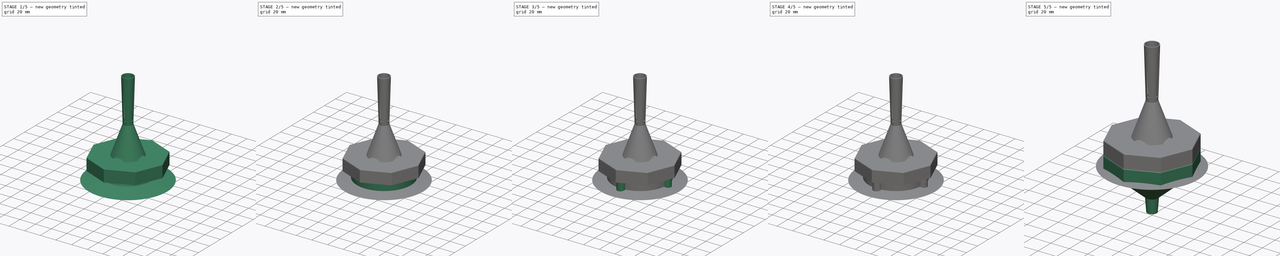
[diagram: build sequence overview — one tinted view per stage of 5, left to right]
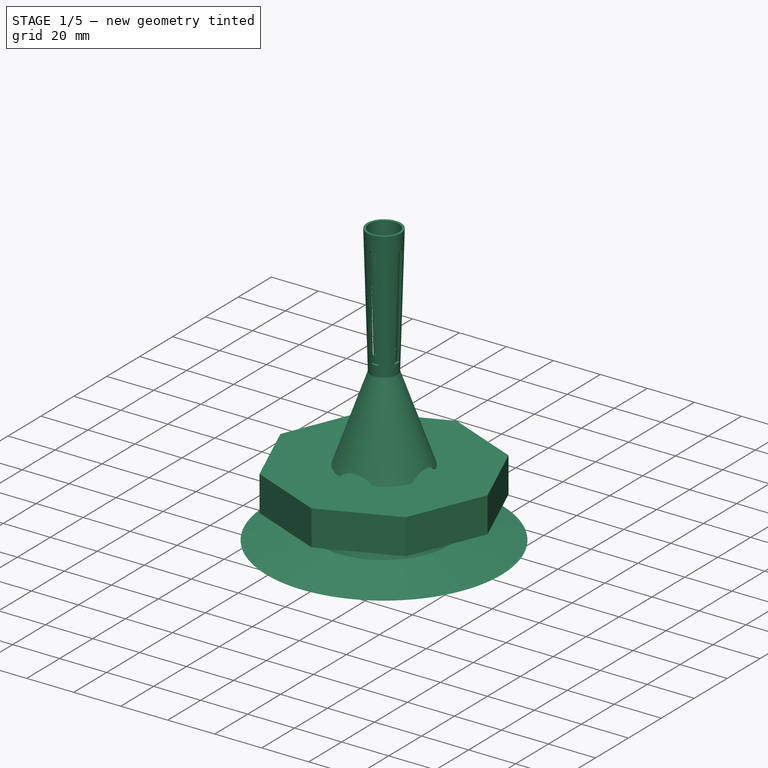
[diagram: stage 1 of 5 — iso view after this stage's code; geometry added in this stage tinted green]
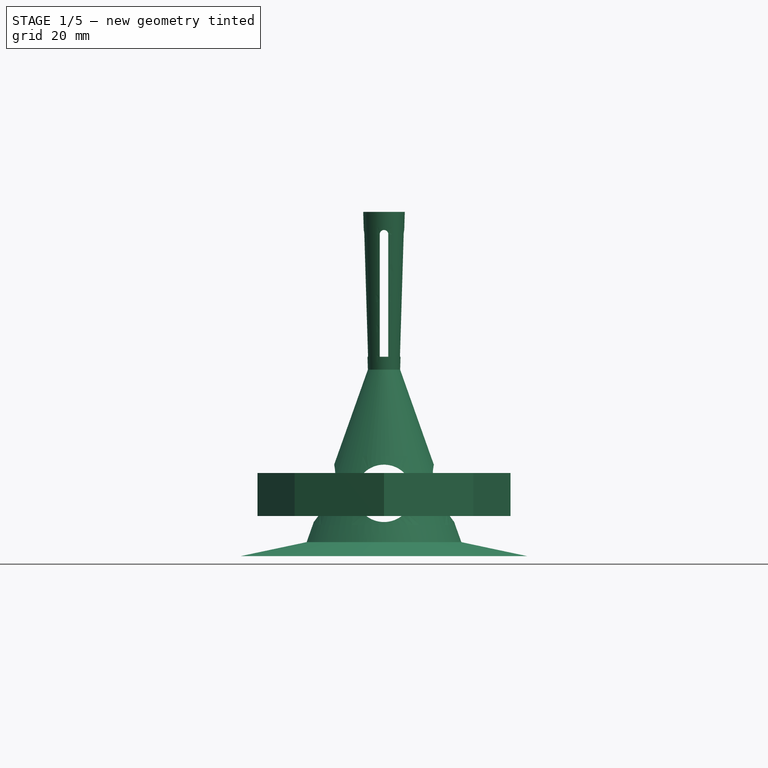
[diagram: stage 1 of 5 — front view after this stage's code; geometry added in this stage tinted green]
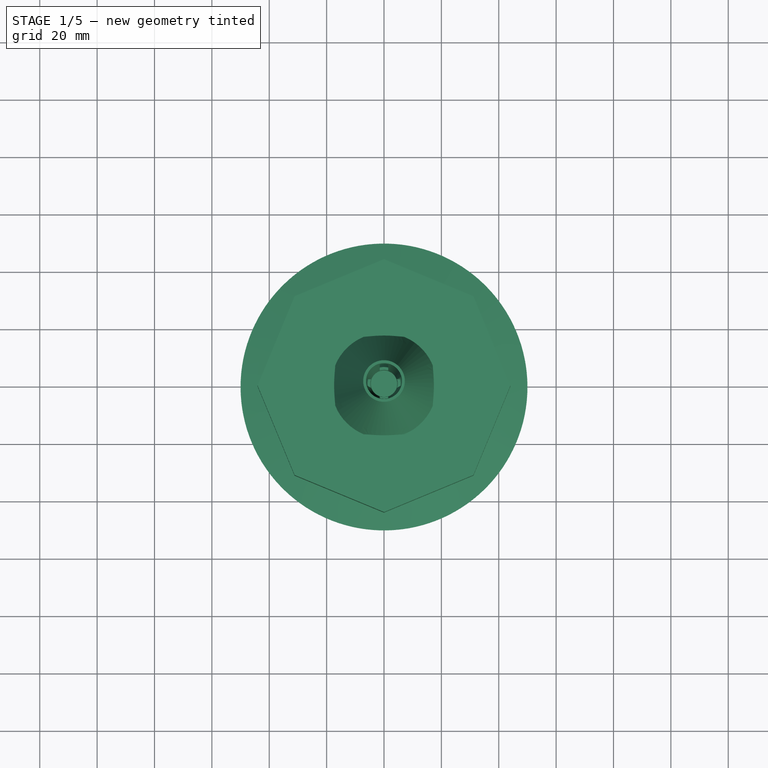
[diagram: stage 1 of 5 — top view after this stage's code; geometry added in this stage tinted green]
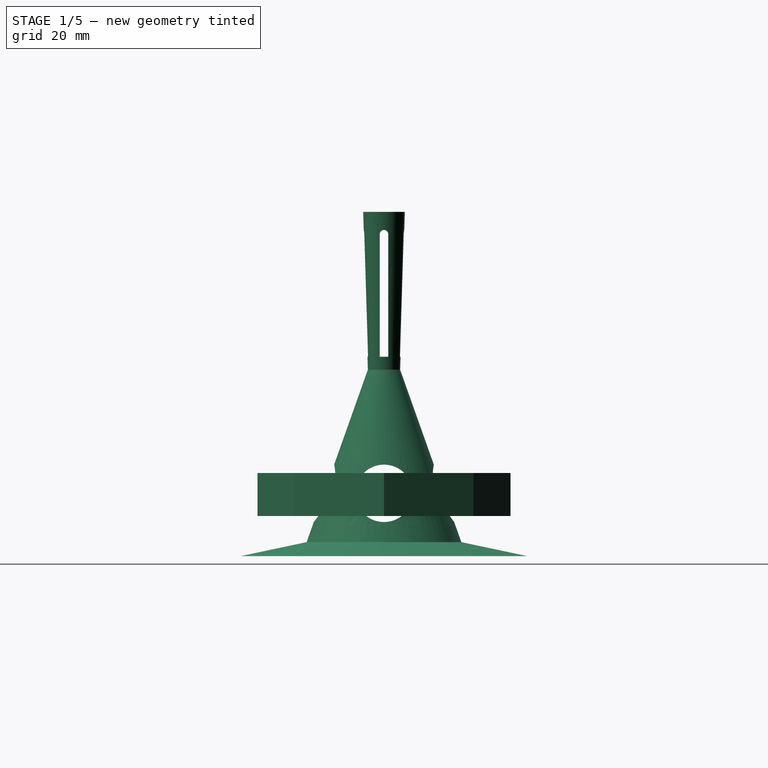
[diagram: stage 1 of 5 — right view after this stage's code; geometry added in this stage tinted green]
FCSTD DOCUMENT  (FreeCAD 2023.131R26244 +5365 (Git))
Label: Weed Cone Grinder 2
License: All rights reserved
LicenseURL: http://en.wikipedia.org/wiki/All_rights_reserved
objects: Sketcher::SketchObject×19, PartDesign::PolarPattern×10, PartDesign::Pad×9, PartDesign::Pocket×8, PartDesign::Body×4, PartDesign::Revolution×2, PartDesign::Fillet×2, Spreadsheet::Sheet×1
note: 135 computed .brp shape members not serialized (recipe doc carries the construction recipe); baked Part::Feature solids carry a one-line shape summary decoded from their .brp

FEATURE [PartDesign::Body] Body001  label="Cone"
  AutoGroupSolids = false
  ClaimAllChildren = false
  ExportMode = 0
  Group = -> [Sketch002,Pad001,Sketch005,Pocket001,Sketch006,Revolution,Fillet]
  InvalidShape = false
  Origin = -> Origin001
  Tip = -> Fillet
  TreeRank = 26
  ValidateShape = true
  _ExportChildren = -> [Pad001,Pocket001,Revolution,Fillet]
  _GroupVersion = 1
FEATURE [Sketcher::SketchObject] Sketch007
  ArcFitTolerance = 1e-06
  ExternalBSplineMaxDegree = 5
  ExternalBSplineTolerance = 0.0001
  FullyConstrained = true
  InternalTolerance = 1e-06
  InvalidShape = false
  MakeInternals = false
  MapMode = 2
  Placement = pos=(0,0,14) rot=(0,0,1;0rad)
  TreeRank = 48
  ValidateShape = true
  expr: Placement.Base.z = <<Parameters>>.Tooth_Height + 2 * <<Parameters>>.Wall_Thickness
  expr: Constraints[25] = <<Parameters>>.Cone_Outer_Diameter
  sketch-geometry (9):
    g0: LineSegment StartX=0 StartY=44.0725 StartZ=0 EndX=-31.1639 EndY=31.1639 EndZ=0
    g1: LineSegment StartX=-31.1639 StartY=31.1639 StartZ=0 EndX=-44.0725 EndY=-1.76641e-11 EndZ=0
    g2: LineSegment StartX=-44.0725 StartY=-1.76628e-11 StartZ=0 EndX=-31.1639 EndY=-31.1639 EndZ=0
    g3: LineSegment StartX=-31.1639 StartY=-31.1639 StartZ=0 EndX=3.53246e-11 EndY=-44.0725 EndZ=0
    g4: LineSegment StartX=3.53244e-11 StartY=-44.0725 StartZ=0 EndX=31.1639 EndY=-31.1639 EndZ=0
    g5: LineSegment StartX=31.1639 StartY=-31.1639 StartZ=0 EndX=44.0725 EndY=5.29852e-11 EndZ=0
    g6: LineSegment StartX=44.0725 StartY=5.29864e-11 StartZ=0 EndX=31.1639 EndY=31.1639 EndZ=0
    g7: LineSegment StartX=31.1639 StartY=31.1639 StartZ=0 EndX=0 EndY=44.0725 EndZ=0
    g8: Circle [constr] CenterX=0 CenterY=1e-16 CenterZ=0 NormalX=0 NormalY=0 NormalZ=1 AngleXU=0 Radius=44.0725
  constraints (20):
    c: Coincident(g0,g1)
    c: Coincident(g1,g2)
    c: Coincident(g2,g3)
    c: Coincident(g3,g4)
    c: Coincident(g4,g5)
    c: Coincident(g5,g6)
    c: Coincident(g6,g7)
    c: Coincident(g7,g0)
    c: Equal(g0, g1-g7) x7
    c: PointOnObject(g0,g8)
    c: PointOnObject(g1,g8)
    c: PointOnObject(g2,g8)
    c: PointOnObject(g3,g8)
    c: PointOnObject(g4,g8)
    c: PointOnObject(g5,g8)
    c: PointOnObject(g6,g8)
    c: PointOnObject(g7,g8)
    c: Coincident(g8,g-1)
    c: PointOnObject(g7,g-2)
    c: Diameter(g8) = 88.1449
FEATURE [PartDesign::Pad] Pad003  label="Top Handle"
  AddSubType = 0
  AlongSketchNormal = false
  AutoTaperInnerAngle = true
  CheckUpToFaceLimits = true
  ClaimChildren = false
  Direction = (0,0,1)
  Fit = 0
  FitJoin = 0
  InnerFit = 0
  InnerFitJoin = 0
  InvalidShape = false
  Length = 15
  Length2 = 100
  Linearize = true
  NewSolid = false
  Profile = -> Sketch007
  Suppress = false
  TaperInnerAngle = 0
  TaperInnerAngleRev = 0
  TreeRank = 49
  Type = 0
  ValidateShape = true
  _ProfileBasedVersion = 1
  expr: Length = <<Parameters>>.Top_Handle_Height
FEATURE [PartDesign::Body] Body002  label="Top"
  AutoGroupSolids = false
  ClaimAllChildren = false
  ExportMode = 0
  Group = -> [Sketch007,Pad003,Sketch015,Pad007,PolarPattern006,Sketch016,Pad008,PolarPattern007,Fillet001]
  InvalidShape = false
  Origin = -> Origin002
  Tip = -> Fillet001
  TreeRank = 11
  ValidateShape = true
  _ExportChildren = -> [Pad003,Pad007,PolarPattern006,Pad008,PolarPattern007,Fillet001]
  _GroupVersion = 1
FEATURE [Sketcher::SketchObject] Sketch017
  ArcFitTolerance = 1e-06
  AttachmentSupport = -> [XZ_Plane003]
  ExternalBSplineMaxDegree = 5
  ExternalBSplineTolerance = 0.0001
  FullyConstrained = false
  InternalTolerance = 1e-06
  InvalidShape = false
  MakeInternals = false
  MapMode = 5
  Placement = pos=(0,0,0) rot=(1,0,0;1.5708rad)
  Support = -> [XZ_Plane003]
  TreeRank = 87
  ValidateShape = true
  expr: Constraints[19] = <<Parameters>>.Spice_Cone_Height / 2
  expr: Constraints[1] = <<Parameters>>.Spice_Cone_Max / 2
  expr: Constraints[20] = (<<Parameters>>.Spice_Cone_Min + <<Parameters>>.Spice_Cone_Max) / 4
  expr: Constraints[4] = <<Parameters>>.Spice_Cone_Height
  expr: Constraints[6] = 2 * <<Parameters>>.Outer_Diameter / 3
  sketch-geometry (10):
    g0: LineSegment StartX=-6.25 StartY=120 StartZ=0 EndX=-7.25 EndY=120 EndZ=0
    g1: LineSegment StartX=-7.25 StartY=120 StartZ=0 EndX=-5.625 EndY=65 EndZ=0
    g2: LineSegment StartX=-5.625 StartY=65 StartZ=0 EndX=-26.9655 EndY=4.88779 EndZ=0
    g3: LineSegment StartX=-4.625 StartY=65 StartZ=0 EndX=-25.9873 EndY=5.09536 EndZ=0
    g4: LineSegment StartX=-26.9655 StartY=4.88779 StartZ=0 EndX=-50 EndY=0 EndZ=0
    g5: LineSegment StartX=-25.9873 StartY=5.09536 StartZ=0 EndX=0 EndY=10 EndZ=0
    g6: LineSegment StartX=-4.625 StartY=65 StartZ=0 EndX=-6.25 EndY=120 EndZ=0
    g7: LineSegment [constr] StartX=-5.625 StartY=65 StartZ=0 EndX=-4.625 EndY=65 EndZ=0
    g8: LineSegment StartX=-50 StartY=0 StartZ=0 EndX=0 EndY=0 EndZ=0
    g9: LineSegment StartX=0 StartY=0 StartZ=0 EndX=0 EndY=10 EndZ=0
  constraints (25):
    c: Horizontal(g0)
    c: DistanceX(g0,g-1) = 6.25
    c: Distance(g0) = 1
    c: Coincident(g1,g0)
    c: DistanceY(g5,g0) = 110
    c: PointOnObject(g4,g-1)
    c: DistanceX(g4,g-1) = 50
    c: DistanceY(g-1,g5) = 10
    c: Distance(g2,g3) = 1
    c: Coincident(g1,g2)
    c: Coincident(g4,g2)
    c: Coincident(g5,g3)
    c: Coincident(g6,g3)
    c: Coincident(g6,g0)
    c: DistanceX(g1,g3) = 1
    c: Coincident(g7,g1)
    c: Coincident(g7,g3)
    c: Horizontal(g7)
    c: PointOnObject(g5,g-2)
    c: DistanceY(g3,g0) = 55
    c: DistanceX(g3,g-1) = 4.625
    c: Coincident(g8,g4)
    c: Coincident(g8,g-1)
    c: Coincident(g9,g8)
    c: Coincident(g9,g5)
FEATURE [PartDesign::Revolution] Revolution001  label="Stand Body"
  AddSubType = 0
  Angle = 360
  Axis = (0,-2e-16,1)
  Base = (0,0,0)
  ClaimChildren = false
  Fit = 0
  FitJoin = 0
  InnerFit = 0
  InnerFitJoin = 0
  InvalidShape = false
  Linearize = true
  NewSolid = false
  Profile = -> Sketch017
  ReferenceAxis = -> Sketch017 [V_Axis]
  Suppress = false
  TreeRank = 88
  ValidateShape = true
  _ProfileBasedVersion = 1
FEATURE [Sketcher::SketchObject] Sketch018
  ArcFitTolerance = 1e-06
  AttachmentSupport = -> [YZ_Plane003]
  ExternalBSplineMaxDegree = 5
  ExternalBSplineTolerance = 0.0001
  FullyConstrained = false
  InternalTolerance = 1e-06
  InvalidShape = false
  MakeInternals = false
  MapMode = 5
  Placement = pos=(0,0,0) rot=(0.57735,0.57735,0.57735;2.0944rad)
  Support = -> [YZ_Plane003]
  TreeRank = 89
  ValidateShape = true
  sketch-geometry (1):
    g0: Circle CenterX=0 CenterY=21.8869 CenterZ=0 NormalX=0 NormalY=0 NormalZ=1 AngleXU=0 Radius=10
  constraints (2):
    c: PointOnObject(g0,g-2)
    c: Diameter(g0) = 20
FEATURE [PartDesign::Pocket] Pocket006  label="Stand Finger Holes"
  AddSubType = 1
  AutoTaperInnerAngle = true
  BaseFeature = -> Revolution001
  CheckUpToFaceLimits = true
  ClaimChildren = false
  Fit = 0
  FitJoin = 0
  InnerFit = 0
  InnerFitJoin = 0
  InvalidShape = false
  Length = 35
  Length2 = 100
  Linearize = true
  NewSolid = false
  Profile = -> Sketch018
  Suppress = false
  TaperInnerAngle = 0
  TaperInnerAngleRev = 0
  TreeRank = 90
  Type = 0
  ValidateShape = true
  _ProfileBasedVersion = 1
  _Version = 1
FEATURE [PartDesign::PolarPattern] PolarPattern008  label="Stand Finger Hole Ring"
  AddSubType = 0
  Angle = 360
  Axis = -> Z_Axis003
  BaseFeature = -> Pocket006
  CopyShape = false
  InvalidShape = false
  NewSolid = false
  Occurrences = 4
  OriginalSubs = -> [Pocket006]
  Originals = -> [Pocket006]
  ParallelTransform = true
  SubTransform = true
  Suppress = false
  TreeRank = 91
  ValidateShape = true
  _Version = 3
FEATURE [Sketcher::SketchObject] Sketch019
  ArcFitTolerance = 1e-06
  AttachmentSupport = -> [XZ_Plane003]
  ExternalBSplineMaxDegree = 5
  ExternalBSplineTolerance = 0.0001
  FullyConstrained = false
  InternalTolerance = 1e-06
  InvalidShape = false
  MakeInternals = false
  MapMode = 5
  Placement = pos=(0,0,0) rot=(1,0,0;1.5708rad)
  Support = -> [XZ_Plane003]
  TreeRank = 92
  ValidateShape = true
  sketch-geometry (4):
    g0: LineSegment StartX=1.5 StartY=112.155 StartZ=0 EndX=1.5 EndY=69.4867 EndZ=0
    g1: LineSegment StartX=1.5 StartY=69.4867 StartZ=0 EndX=-1.5 EndY=69.4867 EndZ=0
    g2: LineSegment StartX=-1.5 StartY=69.4867 StartZ=0 EndX=-1.5 EndY=112.155 EndZ=0
    g3: ArcOfCircle CenterX=0 CenterY=112.174 CenterZ=0 NormalX=0 NormalY=0 NormalZ=1 AngleXU=0 Radius=1.50012 StartAngle=6.27041 EndAngle=9.43756
  constraints (10):
    c: Coincident(g0,g1)
    c: Coincident(g1,g2)
    c: Horizontal(g1)
    c: Vertical(g0)
    c: Vertical(g2)
    c: Distance(g1) = 3
    c: DistanceX(g-1,g0) = 1.5
    c: PointOnObject(g3,g-2)
    c: Coincident(g3,g2)
    c: Coincident(g3,g0)
FEATURE [PartDesign::Pocket] Pocket007  label="Spice Viewing Window"
  AddSubType = 1
  AutoTaperInnerAngle = true
  BaseFeature = -> PolarPattern008
  CheckUpToFaceLimits = true
  ClaimChildren = false
  Fit = 0
  FitJoin = 0
  InnerFit = 0
  InnerFitJoin = 0
  InvalidShape = false
  Length = 100
  Length2 = 100
  Linearize = true
  NewSolid = false
  Profile = -> Sketch019
  Suppress = false
  TaperInnerAngle = 0
  TaperInnerAngleRev = 0
  TreeRank = 93
  Type = 4
  ValidateShape = true
  _ProfileBasedVersion = 1
  _Version = 1
FEATURE [PartDesign::PolarPattern] PolarPattern009  label="Spice Viewing Windows"
  AddSubType = 0
  Angle = 360
  Axis = -> Z_Axis003
  BaseFeature = -> Pocket007
  CopyShape = false
  InvalidShape = false
  NewSolid = false
  Occurrences = 4
  OriginalSubs = -> [Pocket007]
  Originals = -> [Pocket007]
  ParallelTransform = true
  SubTransform = true
  Suppress = false
  TreeRank = 94
  ValidateShape = true
  _Version = 3
FEATURE [PartDesign::Body] Body003  label="Stand"
  AutoGroupSolids = false
  ClaimAllChildren = false
  ExportMode = 0
  Group = -> [Sketch017,Revolution001,Sketch018,Pocket006,PolarPattern008,Sketch019,Pocket007,PolarPattern009]
  InvalidShape = false
  Origin = -> Origin003
  Tip = -> PolarPattern009
  TreeRank = 86
  ValidateShape = true
  _ExportChildren = -> [Revolution001,Pocket006,PolarPattern008,Pocket007,PolarPattern009]
  _GroupVersion = 1
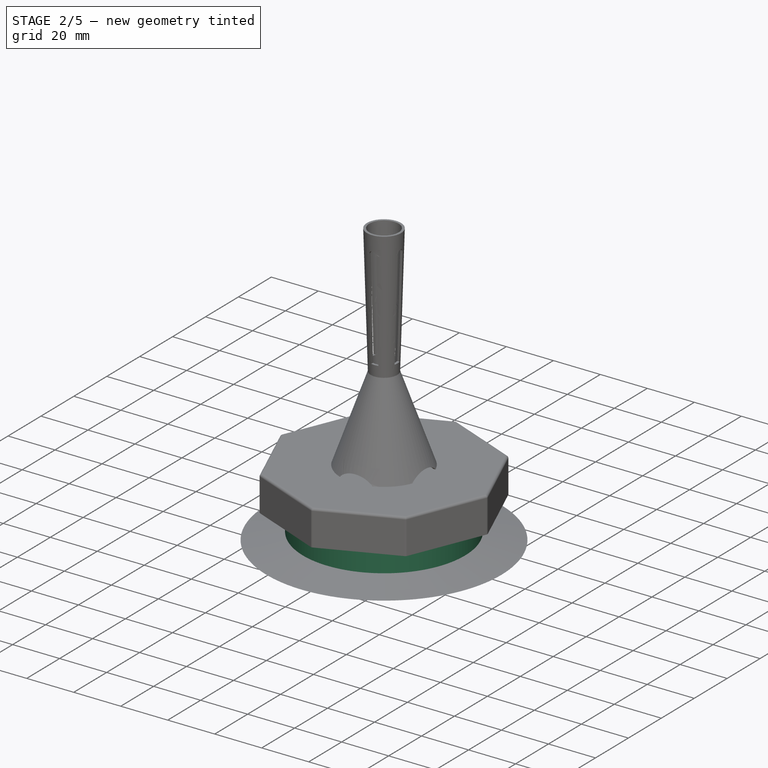
[diagram: stage 2 of 5 — iso view after this stage's code; geometry added in this stage tinted green]
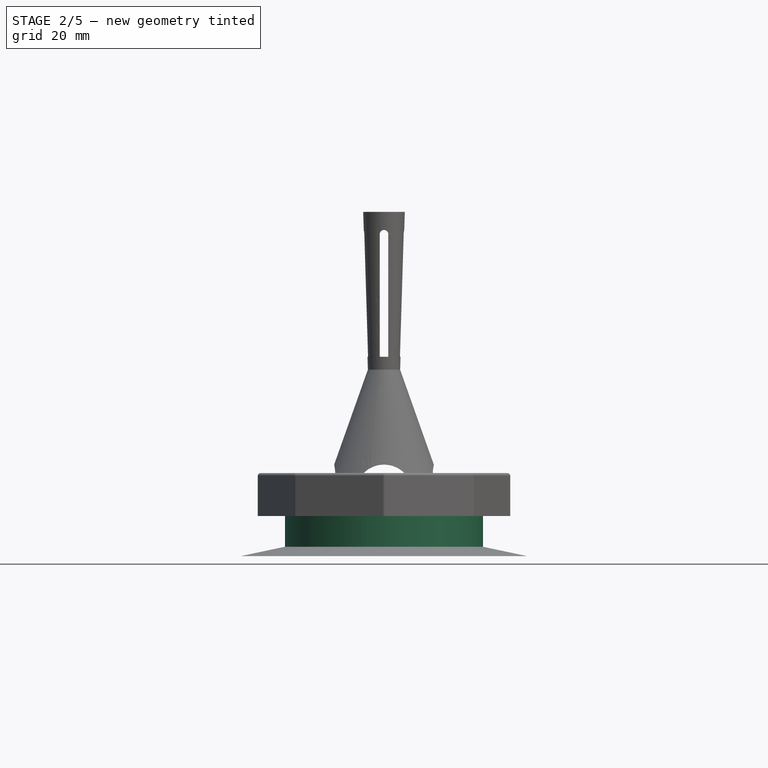
[diagram: stage 2 of 5 — front view after this stage's code; geometry added in this stage tinted green]
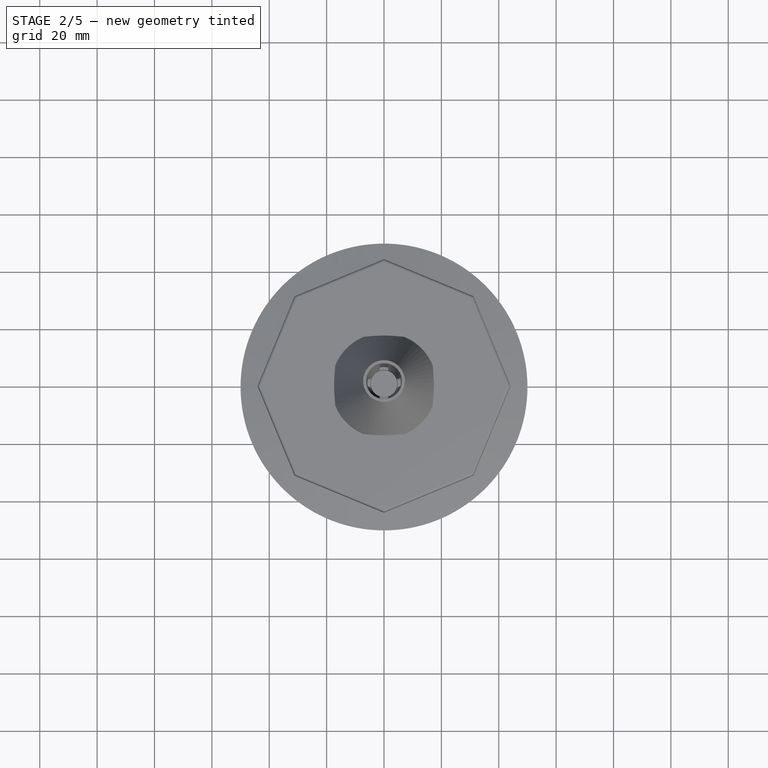
[diagram: stage 2 of 5 — top view after this stage's code; geometry added in this stage tinted green]
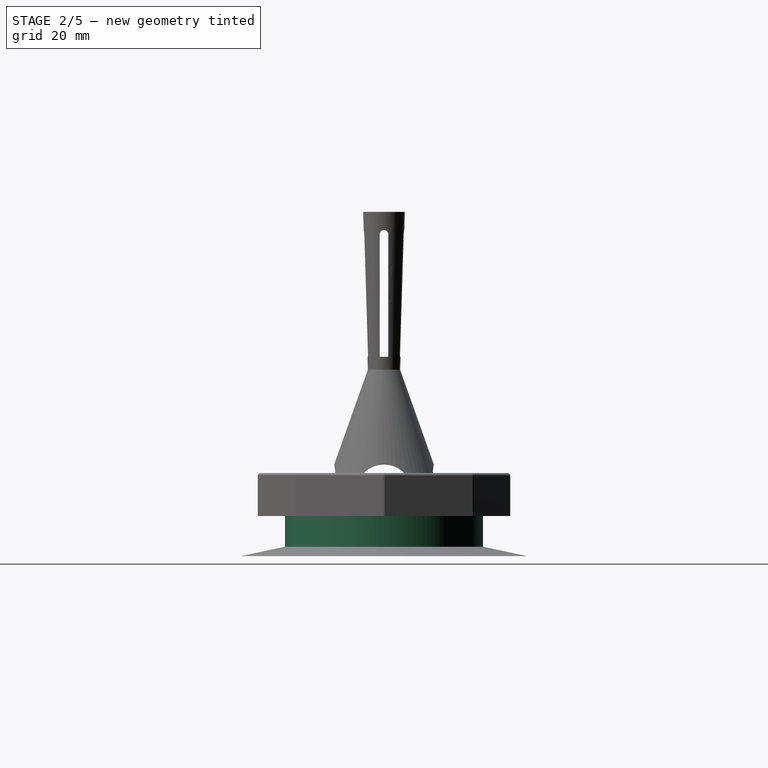
[diagram: stage 2 of 5 — right view after this stage's code; geometry added in this stage tinted green]
FEATURE [Spreadsheet::Sheet] Spreadsheet  label="Parameters"
  PythonMode = false
  ShowCells = 0
  TreeRank = 1
  cells = A1=Overall Diameter; B1(Outer_Diameter)=75; C1=The outer diameter of the handles of the grinder. The base of the stand will be wider.; A2=Overlap Spacing; B2(Overlap_Spacing)=0.5; C2=The distance between the inner ring of the top and outer ring of the bottom of the grinder.; A3=Grinder Diameter; B3(Grinder_Diameter)=65; C3=The internal diameter of the grinder area.; A4=Wall Thickness; B4(Wall_Thickness)=2; C4=How thick walls are in general. Used throughout.; A5=Tooth Height; B5(Tooth_Height)=10; C5=The height of the teeth in the grinder.; A6=Tooth Spacing; B6(Tooth_Spacing)=0.35; C6=The distance between the rings in the grinder.; A7=Spice Hole Diameter; B7(Spice_Hole_Diameter)=4; C7=The diameter of the holes in the bottom half of the grinder that let the ground spice fall into the cone.; A8=Spice Cone Length; B8(Spice_Cone_Height)=110; C8=The overall length of the cone that will be filled with spice. This includes the filter.; A9=Spice Cone Smallest Diameter; B9(Spice_Cone_Min)=6; C9=The diameter of the cone at its narrowest part.; A10=Spice Cone Largest Diameter; B10(Spice_Cone_Max)=12.5; C10=The diameter of the cone at its widest part.; A12=Top Handle Height; B12(Top_Handle_Height)=15; C12=How thick the top of the grinder is. This is the part that fits in the hand.; A14=Middle Outer Diameter; B14(Middle_Outer_Diameter)==Grinder_Diameter + 2 * Wall_Thickness; A15=Middle Height; B15(Middle_Height)==Tooth_Height + Wall_Thickness * 2; A16=Middle Side Post Diameter; B16(Middle_Side_Post_Diameter)=10; C16=The diameter of the posts on the side of the middle part that align the funnel.; A17=Middle Side Post Height; B17(Middle_Side_Post_Height)==Middle_Height; C17=The height of the posts on the side of the middle part that align the funnel.; A18=Center Post Diameter; B18(Center_Post_Diameter)=10; A20=Cone Inner Diameter; B20(Cone_Inner_Diameter)==Middle_Outer_Diameter + 2 * Overlap_Spacing; A21=Cone Outer Diamter; B21(Cone_Outer_Diameter)==Cone_Inner_Diameter + Cone_Side_Post_Diameter + 4 * Wall_Thickness; A22=Code Side Post Diameter; B22(Cone_Side_Post_Diameter)==Middle_Side_Post_Diameter * Cone_Inner_Diameter / Middle_Outer_Diameter; A23=Cone Side Angle; B23(Cone_Angle)=8.5; A24=Cone Collection Height; B24(Cone_Collection_Height)=30; A25=Cone Insert Length; B25(Cone_Insert_Height)=15; A26=Cone Insert Max Width; B26(Cone_Insert_Width)==Spice_Cone_Max; A27=Cone Collection Diameter; B27(Cone_Collection_Diameter)==sqrt(pow(Cone_Outer_Diameter / 2, 2) - pow(Cone_Outer_Diameter * sin(22.3) / 2, 2)) * 2; A29=Tooth Ring Count; B29(Tooth_Rings)=5; C29=Should be an odd number. The bottom will have ceil( n / 2 ) rings and the top with have floor( n / 2 ) rings.; A30=Top Tooth Ring Count; B30(Top_Tooth_Rings)==floor(Tooth_Rings / 2); C30=The number of tooth rings on the top of the grinder. This should be the same as the number of rings in the bottom.; A31=Bottom Tooth Ring Count; B31(Bottom_Tooth_Rings)==ceil(Tooth_Rings / 2); C31=The number of tooth rings on the bottom of the grinder. This should be the same as the number of rings in the top.; A32=Tooth Ring Diameter; B32(Tooth_Ring_Diameter)==(Grinder_Diameter - Center_Post_Diameter) / Tooth_Rings; C32=The difference in diameter between neighboring tooth rings.; B34=Inner; C34=Center; D34=Outer; E34=Teeth; A35=Top Tooth Ring #1; B35(Top_Ring1_Inner)==Top_Ring1_Center - Tooth_Ring_Diameter / 2; C35(Top_Ring1_Center)==Middle_Ring1_Center + Tooth_Ring_Diameter; D35(Top_Ring1_Outer)==Top_Ring1_Center + Tooth_Ring_Diameter / 2; E35(Top_Ring1_Teeth)=10; A36=Top Tooth Ring #2; B36(Top_Ring2_Inner)==Top_Ring2_Center - Tooth_Ring_Diameter / 2; C36(Top_Ring2_Center)==Top_Tooth_Rings >= 2 ? Middle_Ring2_Center + Tooth_Ring_Diameter : 0; D36(Top_Ring2_Outer)==Top_Ring2_Center + Tooth_Ring_Diameter / 2; E36(Top_Ring2_Teeth)=16; A37=Top Tooth Ring #3; B37(Top_Ring3_Inner)==Top_Ring3_Center - Tooth_Ring_Diameter / 2; C37(Top_Ring3_Center)==Top_Tooth_Rings >= 3 ? Middle_Ring3_Center + Tooth_Ring_Diameter : 0; D37(Top_Ring3_Outer)==Top_Ring3_Center + Tooth_Ring_Diameter / 2; E37(Top_Ring3_Teeth)=22; A38=Top Tooth Ring #4; B38(Top_Ring4_Inner)==Top_Ring4_Center - Tooth_Ring_Diameter / 2; C38(Top_Ring4_Center)==Top_Tooth_Rings >= 4 ? Middle_Ring4_Center + Tooth_Ring_Diameter : 0; D38(Top_Ring4_Outer)==Top_Ring4_Center + Tooth_Ring_Diameter / 2; E38(Top_Ring4_Teeth)=30; A39=Top Tooth Ring #5; B39(Top_Ring5_Inner)==Top_Ring5_Center - Tooth_Ring_Diameter / 2; C39(Top_Ring5_Center)==Top_Tooth_Rings >= 5 ? Middle_Ring5_Center + Tooth_Ring_Diameter : 0; D39(Top_Ring5_Outer)==Top_Ring5_Center + Tooth_Ring_Diameter / 2; E39(Top_Ring5_Teeth)=40; B41=Inner; C41=Center; D41=Outer; E41=13; F41=Tooth Y-Angle; G41=Hole Y-Angle; H41=Tooth Width; I41=Side Angle; A42=Middle Tooth Ring #1; B42(Middle_Ring1_Inner)==Middle_Ring1_Center - Tooth_Ring_Diameter / 2 + Tooth_Spacing; C42(Middle_Ring1_Center)==Center_Post_Diameter; D42(Middle_Ring1_Outer)==Middle_Ring1_Center + Tooth_Ring_Diameter / 2 - Tooth_Spacing; E42(Middle_Ring1_Teeth)=5; F42(Middle_Ring1_Tooth_Angle)=15; G42(Middle_Ring1_Hole_Angle)==Middle_Ring1_Tooth_Angle + 180; H42(Middle_Ring1_Tooth_Width)==pi * Middle_Ring1_Center / Middle_Ring1_Teeth + 1; I42(Middle_Ring1_Side_Angle)=8; A43=Middle Tooth Ring #2; B43(Middle_Ring2_Inner)==Middle_Ring2_Center - Tooth_Ring_Diameter / 2 + Tooth_Spacing; C43(Middle_Ring2_Center)==Bottom_Tooth_Rings >= 2 ? Top_Ring1_Center + Tooth_Ring_Diameter : 0; D43(Middle_Ring2_Outer)==Middle_Ring2_Center + Tooth_Ring_Diameter / 2; E43(Middle_Ring2_Teeth)=13; F43(Middle_Ring2_Tooth_Angle)=23; G43(Middle_Ring2_Hole_Angle)==Middle_Ring2_Tooth_Angle + 180; H43(Middle_Ring2_Tooth_Width)==pi * Middle_Ring2_Center / Middle_Ring2_Teeth + 1; I43(Middle_Ring2_Side_Angle)=12.5; A44=Middle Tooth Ring #3; B44(Middle_Ring3_Inner)==Middle_Ring3_Center - Tooth_Ring_Diameter / 2 + Tooth_Spacing; C44(Middle_Ring3_Center)==Bottom_Tooth_Rings >= 3 ? Top_Ring2_Center + Tooth_Ring_Diameter : 0; D44(Middle_Ring3_Outer)==Middle_Ring3_Center + Tooth_Ring_Diameter / 2 - Tooth_Spacing; E44(Middle_Ring3_Teeth)=17; F44(Middle_Ring3_Tooth_Angle)=31; G44(Middle_Ring3_Hole_Angle)==Middle_Ring3_Tooth_Angle + 180; H44(Middle_Ring3_Tooth_Width)==pi * Middle_Ring3_Center / Middle_Ring3_Teeth + 1; I44(Middle_Ring3_Side_Angle)=13; A45=Middle Tooth Ring #4; B45(Middle_Ring4_Inner)==Middle_Ring4_Center - Tooth_Ring_Diameter / 2 + Tooth_Spacing; C45(Middle_Ring4_Center)==Bottom_Tooth_Rings >= 4 ? Top_Ring3_Center + Tooth_Ring_Diameter : 0; D45(Middle_Ring4_Outer)==Middle_Ring4_Center + Tooth_Ring_Diameter / 2 - Tooth_Spacing; E45(Middle_Ring4_Teeth)=11; F45(Middle_Ring4_Tooth_Angle)=45; G45(Middle_Ring4_Hole_Angle)==Middle_Ring4_Tooth_Angle + 180; H45(Middle_Ring4_Tooth_Width)==pi * Middle_Ring4_Center / Middle_Ring4_Teeth + 1; I45(Middle_Ring4_Side_Angle)=; A46=Middle Tooth Ring #5; B46(Middle_Ring5_Inner)==Middle_Ring5_Center - Tooth_Ring_Diameter / 2 + Tooth_Spacing; C46(Middle_Ring5_Center)==Bottom_Tooth_Rings >= 5 ? Top_Ring4_Center + Tooth_Ring_Diameter : 0; D46(Middle_Ring5_Outer)==Middle_Ring5_Center + Tooth_Ring_Diameter / 2 - Tooth_Spacing; E46(Middle_Ring5_Teeth)=13; F46(Middle_Ring5_Tooth_Angle)=51; G46(Middle_Ring5_Hole_Angle)==Middle_Ring5_Tooth_Angle + 180; H46(Middle_Ring5_Tooth_Width)==pi * Middle_Ring5_Center / Middle_Ring5_Teeth + 1; I46(Middle_Ring5_Side_Angle)=
FEATURE [Sketcher::SketchObject] Sketch
  ArcFitTolerance = 1e-06
  AttachmentSupport = -> [XY_Plane]
  ExternalBSplineMaxDegree = 5
  ExternalBSplineTolerance = 0.0001
  FullyConstrained = true
  InternalTolerance = 1e-06
  InvalidShape = false
  MakeInternals = false
  MapMode = 5
  Support = -> [XY_Plane]
  TreeRank = 13
  ValidateShape = true
  expr: Constraints[1] = <<Parameters>>.Middle_Outer_Diameter
  sketch-geometry (1):
    g0: Circle CenterX=0 CenterY=0 CenterZ=0 NormalX=0 NormalY=0 NormalZ=1 AngleXU=0 Radius=34.5
  constraints (2):
    c: Coincident(g0,g-1)
    c: Diameter(g0) = 69
FEATURE [PartDesign::Pad] Pad  label="Middle Body"
  AddSubType = 0
  AlongSketchNormal = false
  AutoTaperInnerAngle = true
  CheckUpToFaceLimits = true
  ClaimChildren = false
  Direction = (0,0,1)
  Fit = 0
  FitJoin = 0
  InnerFit = 0
  InnerFitJoin = 0
  InvalidShape = false
  Length = 14
  Length2 = 100
  Linearize = true
  NewSolid = false
  Profile = -> Sketch
  Suppress = false
  TaperInnerAngle = 0
  TaperInnerAngleRev = 0
  TreeRank = 14
  Type = 0
  ValidateShape = true
  _ProfileBasedVersion = 1
  expr: Length = <<Parameters>>.Middle_Height
FEATURE [PartDesign::Body] Body  label="Middle"
  AutoGroupSolids = false
  ClaimAllChildren = false
  ExportMode = 0
  Group = -> [Sketch,Pad,Sketch003,Pad002,Sketch004,Pocket,Sketch008,Pad004,PolarPattern,Sketch009,Pad005,PolarPattern001,Sketch010,Pad006,PolarPattern002,Sketch011,Pocket002,PolarPattern003,Sketch012,Pocket003,PolarPattern004,Sketch013,Pocket004,PolarPattern005,Sketch014,Pocket005]
  InvalidShape = false
  Origin = -> Origin
  Tip = -> Pocket005
  TreeRank = 12
  ValidateShape = true
  _ExportChildren = -> [Pad,Pad002,Pocket,Pad004,PolarPattern,Pad005,PolarPattern001,Pad006,PolarPattern002,Pocket002,PolarPattern003,Pocket003,PolarPattern004,Pocket004,PolarPattern005,Pocket005]
  _GroupVersion = 1
FEATURE [Sketcher::SketchObject] Sketch015
  ArcFitTolerance = 1e-06
  AttachmentSupport = -> [Pad003]
  ExternalBSplineMaxDegree = 5
  ExternalBSplineTolerance = 0.0001
  FullyConstrained = false
  InternalTolerance = 1e-06
  InvalidShape = false
  MakeInternals = false
  MapMode = 5
  Placement = pos=(0,0,14) rot=(1,0,0;3.14159rad)
  Support = -> [Pad003]
  TreeRank = 70
  ValidateShape = true
  expr: Constraints[3] = <<Parameters>>.Top_Ring1_Outer
  expr: Constraints[4] = <<Parameters>>.Top_Ring1_Center
  expr: Constraints[5] = <<Parameters>>.Top_Ring1_Inner
  sketch-geometry (7):
    g0: Circle [constr] CenterX=0 CenterY=0 CenterZ=0 NormalX=0 NormalY=0 NormalZ=1 AngleXU=0 Radius=10.5
    g1: Circle [constr] CenterX=0 CenterY=0 CenterZ=0 NormalX=0 NormalY=0 NormalZ=1 AngleXU=0 Radius=7.75
    g2: Circle [constr] CenterX=0 CenterY=0 CenterZ=0 NormalX=0 NormalY=0 NormalZ=1 AngleXU=0 Radius=13.25
    g3: LineSegment StartX=-10.4946 StartY=8.08857 StartZ=0 EndX=-7.65128 EndY=7.19082 EndZ=0
    g4: LineSegment StartX=-10.4946 StartY=-0.335305 StartZ=0 EndX=-10.4946 EndY=8.08857 EndZ=0
    g5: LineSegment StartX=-10.4946 StartY=-0.335305 StartZ=0 EndX=-7.65128 EndY=-1.23305 EndZ=0
    g6: LineSegment StartX=-7.65128 StartY=-1.23305 StartZ=0 EndX=-7.65128 EndY=7.19082 EndZ=0
  constraints (17):
    c: Coincident(g0,g-1)
    c: Coincident(g1,g0)
    c: Coincident(g2,g0)
    c: Diameter(g2) = 26.5
    c: Diameter(g0) = 21
    c: Diameter(g1) = 15.5
    c: PointOnObject(g3,g2)
    c: PointOnObject(g3,g0)
    c: PointOnObject(g4,g0)
    c: Coincident(g4,g3)
    c: Coincident(g5,g4)
    c: PointOnObject(g5,g1)
    c: Coincident(g6,g5)
    c: Coincident(g6,g3)
    c: Vertical(g6)
    c: Parallel(g4,g6)
    c: Parallel(g3,g5)
FEATURE [PartDesign::Pad] Pad007  label="Top Teeth #1"
  AddSubType = 0
  AlongSketchNormal = false
  AutoTaperInnerAngle = true
  BaseFeature = -> Pad003
  CheckUpToFaceLimits = true
  ClaimChildren = false
  Direction = (0,0,-1)
  Fit = 0
  FitJoin = 0
  InnerFit = 0
  InnerFitJoin = 0
  InvalidShape = false
  Length = 10
  Length2 = 100
  Linearize = true
  NewSolid = false
  Profile = -> Sketch015
  Suppress = false
  TaperInnerAngle = 0
  TaperInnerAngleRev = 0
  TreeRank = 71
  Type = 0
  ValidateShape = true
  _ProfileBasedVersion = 1
  expr: Length = <<Parameters>>.Tooth_Height
FEATURE [PartDesign::PolarPattern] PolarPattern006  label="Top Ring #1"
  AddSubType = 0
  Angle = 360
  Axis = -> Sketch015 [N_Axis]
  BaseFeature = -> Pad007
  CopyShape = false
  InvalidShape = false
  NewSolid = false
  Occurrences = 10
  OriginalSubs = -> [Pad007]
  Originals = -> [Pad007]
  ParallelTransform = true
  SubTransform = true
  Suppress = false
  TreeRank = 72
  ValidateShape = true
  _Version = 3
  expr: Occurrences = <<Parameters>>.Top_Ring1_Teeth
FEATURE [Sketcher::SketchObject] Sketch016
  ArcFitTolerance = 1e-06
  AttachmentSupport = -> [PolarPattern006]
  ExternalBSplineMaxDegree = 5
  ExternalBSplineTolerance = 0.0001
  FullyConstrained = false
  InternalTolerance = 1e-06
  InvalidShape = false
  MakeInternals = false
  MapMode = 5
  Placement = pos=(0,0,14) rot=(1,0,0;3.14159rad)
  Support = -> [PolarPattern006]
  TreeRank = 73
  ValidateShape = true
  expr: Constraints[3] = <<Parameters>>.Top_Ring2_Outer
  expr: Constraints[4] = <<Parameters>>.Top_Ring2_Center
  expr: Constraints[5] = <<Parameters>>.Top_Ring2_Inner
  sketch-geometry (7):
    g0: Circle [constr] CenterX=0 CenterY=0 CenterZ=0 NormalX=0 NormalY=0 NormalZ=1 AngleXU=0 Radius=18.75
    g1: Circle [constr] CenterX=0 CenterY=0 CenterZ=0 NormalX=0 NormalY=0 NormalZ=1 AngleXU=0 Radius=21.5
    g2: Circle [constr] CenterX=0 CenterY=0 CenterZ=0 NormalX=0 NormalY=0 NormalZ=1 AngleXU=0 Radius=24.25
    g3: LineSegment StartX=-24.0691 StartY=2.95665 StartZ=0 EndX=-20.5808 EndY=-6.21933 EndZ=0
    g4: LineSegment StartX=-20.5808 StartY=-6.21933 StartZ=0 EndX=-17.7722 EndY=-5.97581 EndZ=0
    g5: LineSegment StartX=-17.7722 StartY=-5.97581 StartZ=0 EndX=-21.2605 EndY=3.20017 EndZ=0
    g6: LineSegment StartX=-21.2605 StartY=3.20017 StartZ=0 EndX=-24.0691 EndY=2.95665 EndZ=0
  constraints (16):
    c: Coincident(g0,g-1)
    c: Coincident(g1,g0)
    c: Coincident(g2,g0)
    c: Diameter(g2) = 48.5
    c: Diameter(g1) = 43
    c: Diameter(g0) = 37.5
    c: PointOnObject(g3,g2)
    c: PointOnObject(g3,g1)
    c: Coincident(g4,g3)
    c: PointOnObject(g4,g0)
    c: Coincident(g5,g4)
    c: PointOnObject(g5,g1)
    c: Coincident(g6,g5)
    c: Coincident(g6,g3)
    c: Parallel(g3,g5)
    c: Parallel(g4,g6)
FEATURE [PartDesign::Pad] Pad008  label="Top Teeth #2"
  AddSubType = 0
  AlongSketchNormal = false
  AutoTaperInnerAngle = true
  BaseFeature = -> PolarPattern006
  CheckUpToFaceLimits = true
  ClaimChildren = false
  Direction = (0,0,-1)
  Fit = 0
  FitJoin = 0
  InnerFit = 0
  InnerFitJoin = 0
  InvalidShape = false
  Length = 10
  Length2 = 100
  Linearize = true
  NewSolid = false
  Profile = -> Sketch016
  Suppress = false
  TaperInnerAngle = 0
  TaperInnerAngleRev = 0
  TreeRank = 74
  Type = 0
  ValidateShape = true
  _ProfileBasedVersion = 1
  expr: Length = <<Parameters>>.Tooth_Height
FEATURE [PartDesign::PolarPattern] PolarPattern007  label="Top Ring #2"
  AddSubType = 0
  Angle = 360
  Axis = -> Sketch016 [N_Axis]
  BaseFeature = -> Pad008
  CopyShape = false
  InvalidShape = false
  NewSolid = false
  Occurrences = 16
  OriginalSubs = -> [Pad008]
  Originals = -> [Pad008]
  ParallelTransform = true
  SubTransform = true
  Suppress = false
  TreeRank = 75
  ValidateShape = true
  _Version = 3
  expr: Occurrences = <<Parameters>>.Top_Ring2_Teeth
FEATURE [PartDesign::Fillet] Fillet001  label="Top Handle Fillet"
  AddSubType = 0
  Base = -> PolarPattern007 [Edge10,Edge2,Edge8,Edge48,Edge54,Edge49,Edge4,Edge1,Edge7,Edge56,Edge50,Edge55,Edge51,Edge53,Edge5,Edge52]
  BaseFeature = -> PolarPattern007
  InvalidShape = false
  NewSolid = false
  Radius = 1
  SupportTransform = false
  Suppress = false
  TreeRank = 76
  ValidateShape = true
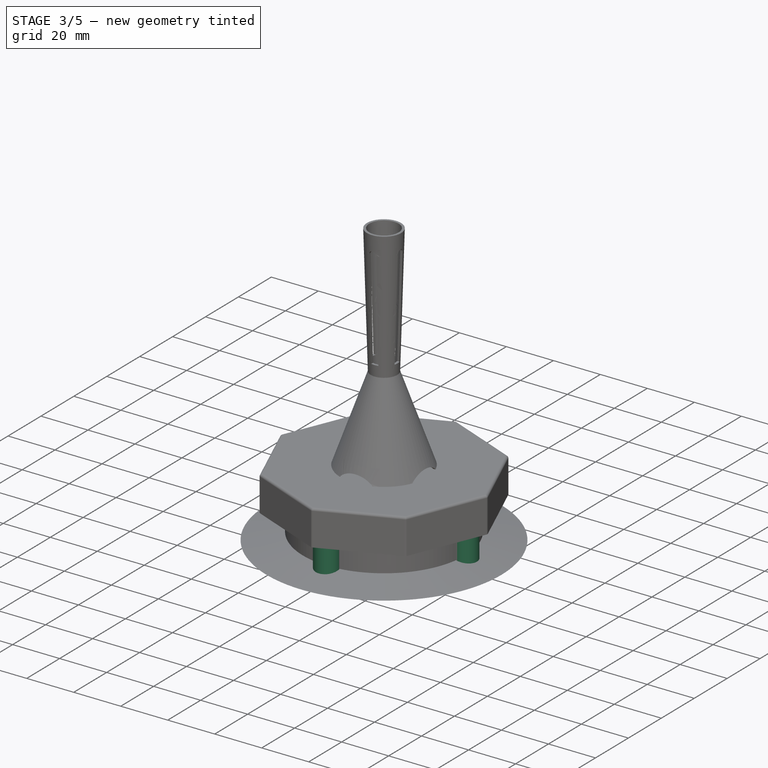
[diagram: stage 3 of 5 — iso view after this stage's code; geometry added in this stage tinted green]
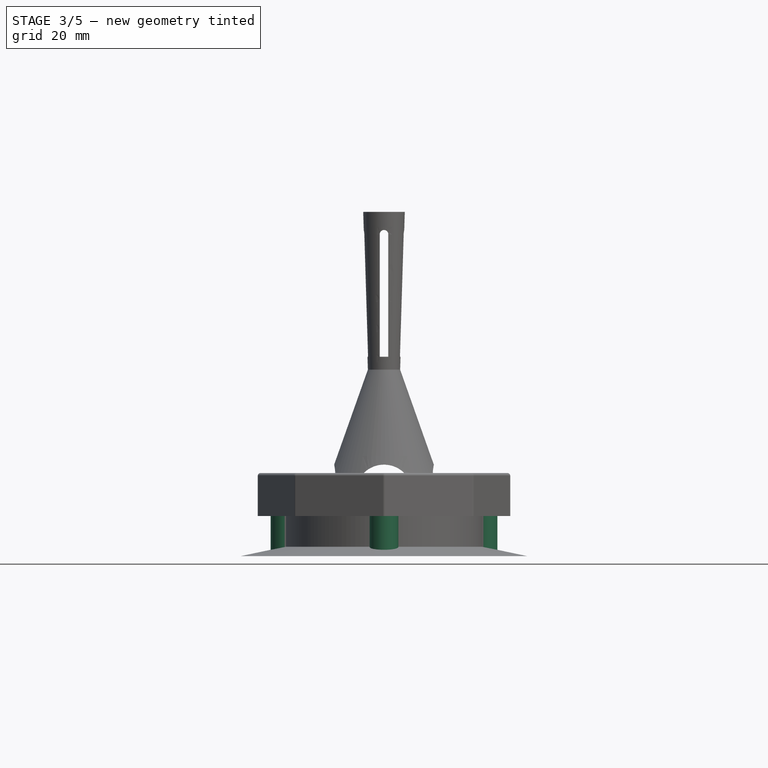
[diagram: stage 3 of 5 — front view after this stage's code; geometry added in this stage tinted green]
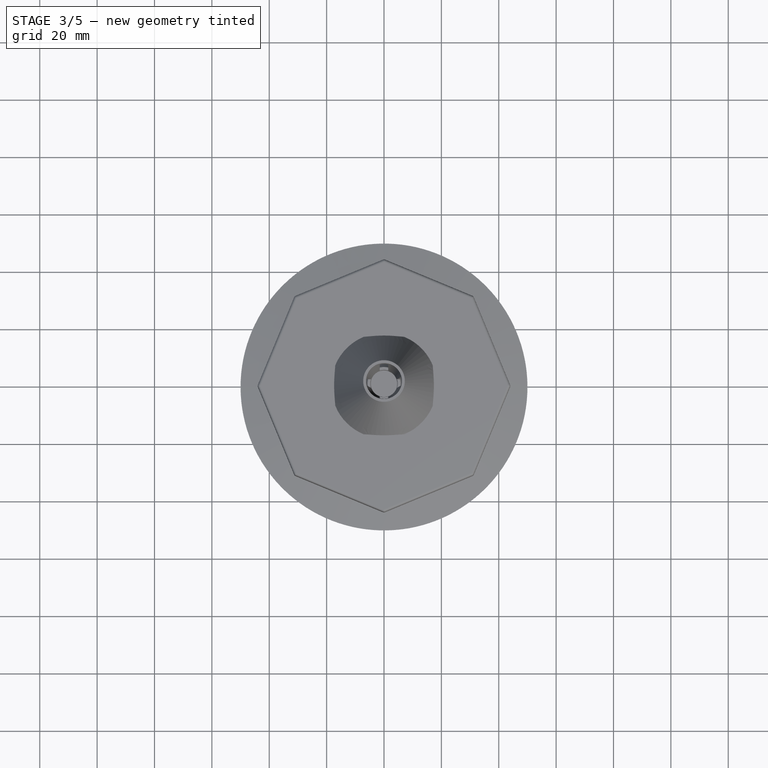
[diagram: stage 3 of 5 — top view after this stage's code; geometry added in this stage tinted green]
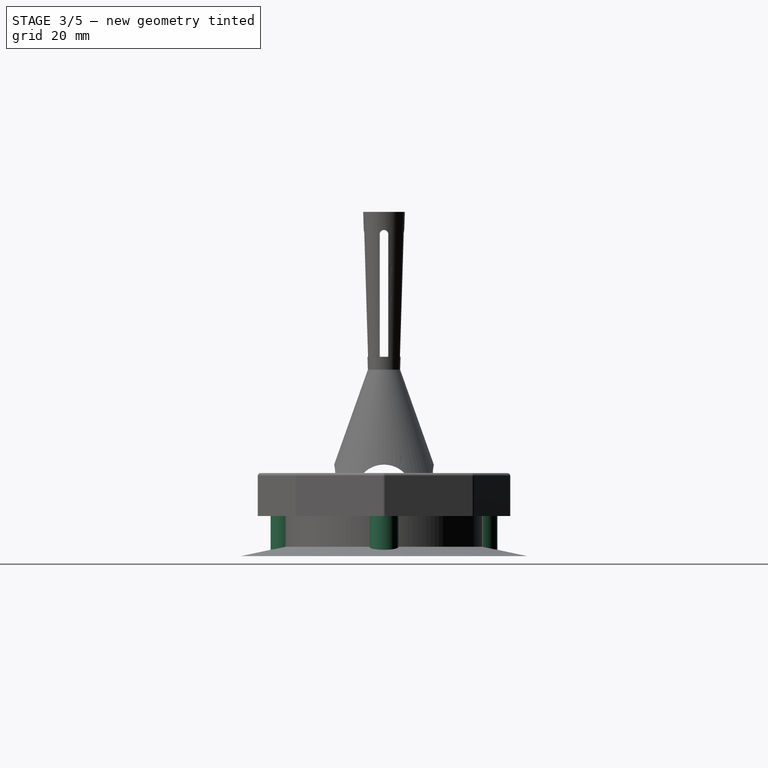
[diagram: stage 3 of 5 — right view after this stage's code; geometry added in this stage tinted green]
FEATURE [Sketcher::SketchObject] Sketch003
  ArcFitTolerance = 1e-06
  AttachmentSupport = -> [Pad]
  ExternalBSplineMaxDegree = 5
  ExternalBSplineTolerance = 0.0001
  FullyConstrained = true
  InternalTolerance = 1e-06
  InvalidShape = false
  MakeInternals = false
  MapMode = 5
  Placement = pos=(0,0,14) rot=(0,0,1;0rad)
  Support = -> [Pad]
  TreeRank = 30
  ValidateShape = true
  expr: Constraints[0] = <<Parameters>>.Middle_Side_Post_Diameter
  expr: Constraints[10] = <<Parameters>>.Middle_Outer_Diameter / 2
  expr: Constraints[11] = <<Parameters>>.Middle_Outer_Diameter / 2
  expr: Constraints[8] = <<Parameters>>.Middle_Outer_Diameter / 2
  expr: Constraints[9] = <<Parameters>>.Middle_Outer_Diameter / 2
  sketch-geometry (4):
    g0: Circle CenterX=-34.5 CenterY=0 CenterZ=0 NormalX=0 NormalY=0 NormalZ=1 AngleXU=0 Radius=5
    g1: Circle CenterX=0 CenterY=34.5 CenterZ=0 NormalX=0 NormalY=0 NormalZ=1 AngleXU=0 Radius=5
    g2: Circle CenterX=34.5 CenterY=0 CenterZ=0 NormalX=0 NormalY=0 NormalZ=1 AngleXU=0 Radius=5
    g3: Circle CenterX=0 CenterY=-34.5 CenterZ=0 NormalX=0 NormalY=0 NormalZ=1 AngleXU=0 Radius=5
  constraints (12):
    c: Diameter(g0) = 10
    c: Equal(g0,g1)
    c: Equal(g0,g2)
    c: Equal(g0,g3)
    c: PointOnObject(g0,g-1)
    c: PointOnObject(g1,g-2)
    c: PointOnObject(g2,g-1)
    c: PointOnObject(g3,g-2)
    c: DistanceX(g0,g-1) = 34.5
    c: DistanceX(g-1,g2) = 34.5
    c: DistanceY(g-1,g1) = 34.5
    c: DistanceY(g3,g-1) = 34.5
FEATURE [PartDesign::Pad] Pad002  label="Middle Side Posts"
  AddSubType = 0
  AlongSketchNormal = false
  AutoTaperInnerAngle = true
  BaseFeature = -> Pad
  CheckUpToFaceLimits = true
  ClaimChildren = false
  Direction = (0,0,1)
  Fit = 0
  FitJoin = 0
  InnerFit = 0
  InnerFitJoin = 0
  InvalidShape = false
  Length = 14
  Length2 = 100
  Linearize = true
  NewSolid = false
  Profile = -> Sketch003
  Reversed = true
  Suppress = false
  TaperInnerAngle = 0
  TaperInnerAngleRev = 0
  TreeRank = 31
  Type = 0
  ValidateShape = true
  _ProfileBasedVersion = 1
  expr: Length = <<Parameters>>.Middle_Side_Post_Height
FEATURE [Sketcher::SketchObject] Sketch004
  ArcFitTolerance = 1e-06
  AttachmentSupport = -> [Pad002]
  ExternalBSplineMaxDegree = 5
  ExternalBSplineTolerance = 0.0001
  FullyConstrained = true
  InternalTolerance = 1e-06
  InvalidShape = false
  MakeInternals = false
  MapMode = 5
  Placement = pos=(0,0,14) rot=(0,0,1;0rad)
  Support = -> [Pad002]
  TreeRank = 32
  ValidateShape = true
  expr: Constraints[1] = <<Parameters>>.Middle_Ring3_Center
  expr: Constraints[3] = <<Parameters>>.Center_Post_Diameter
  sketch-geometry (2):
    g0: Circle CenterX=0 CenterY=0 CenterZ=0 NormalX=0 NormalY=0 NormalZ=1 AngleXU=0 Radius=27
    g1: Circle CenterX=0 CenterY=0 CenterZ=0 NormalX=0 NormalY=0 NormalZ=1 AngleXU=0 Radius=5
  constraints (4):
    c: Coincident(g0,g-1)
    c: Diameter(g0) = 54
    c: Coincident(g1,g0)
    c: Diameter(g1) = 10
FEATURE [PartDesign::Pocket] Pocket  label="Middle Hollow"
  AddSubType = 1
  AutoTaperInnerAngle = true
  BaseFeature = -> Pad002
  CheckUpToFaceLimits = true
  ClaimChildren = false
  Fit = 0
  FitJoin = 0
  InnerFit = 0
  InnerFitJoin = 0
  InvalidShape = false
  Length = 10
  Length2 = 100
  Linearize = true
  NewSolid = false
  Profile = -> Sketch004
  Suppress = false
  TaperInnerAngle = 0
  TaperInnerAngleRev = 0
  TreeRank = 33
  Type = 0
  ValidateShape = true
  _ProfileBasedVersion = 1
  _Version = 1
  expr: Length = <<Parameters>>.Middle_Height - 2 * <<Parameters>>.Wall_Thickness
FEATURE [Sketcher::SketchObject] Sketch008
  ArcFitTolerance = 1e-06
  AttachmentSupport = -> [Pocket]
  ExternalBSplineMaxDegree = 5
  ExternalBSplineTolerance = 0.0001
  FullyConstrained = false
  InternalTolerance = 1e-06
  InvalidShape = false
  MakeInternals = false
  MapMode = 5
  Placement = pos=(0,0,4) rot=(0,0,1;0rad)
  Support = -> [Pocket]
  TreeRank = 50
  ValidateShape = true
  expr: Constraints[18] = Spreadsheet.Middle_Ring1_Tooth_Angle
  expr: Constraints[19] = <<Parameters>>.Middle_Ring1_Tooth_Width
  expr: Constraints[2] = <<Parameters>>.Middle_Ring1_Inner
  expr: Constraints[3] = <<Parameters>>.Middle_Ring1_Outer
  expr: Constraints[5] = <<Parameters>>.Middle_Ring1_Center
  sketch-geometry (8):
    g0: Circle [constr] CenterX=0 CenterY=0 CenterZ=0 NormalX=0 NormalY=0 NormalZ=1 AngleXU=0 Radius=2.425
    g1: Circle [constr] CenterX=0 CenterY=0 CenterZ=0 NormalX=0 NormalY=0 NormalZ=1 AngleXU=0 Radius=7.575
    g2: Circle [constr] CenterX=0 CenterY=0 CenterZ=0 NormalX=0 NormalY=0 NormalZ=1 AngleXU=0 Radius=5
    g3: LineSegment StartX=-4.40427 StartY=2.36694 StartZ=0 EndX=-1.96055 EndY=7.31689 EndZ=0
    g4: LineSegment StartX=-1.96055 StartY=7.31689 StartZ=0 EndX=2.63074 EndY=4.25196 EndZ=0
    g5: LineSegment StartX=2.63074 StartY=4.25196 StartZ=0 EndX=-0.627636 EndY=2.34237 EndZ=0
    g6: LineSegment StartX=-4.40427 StartY=2.36694 StartZ=0 EndX=-0.627636 EndY=2.34237 EndZ=0
    g7: LineSegment [constr] StartX=0 StartY=0 StartZ=0 EndX=-2.77822 EndY=10.3685 EndZ=0
  constraints (20):
    c: Coincident(g0,g-1)
    c: Coincident(g1,g0)
    c: Diameter(g0) = 4.85
    c: Diameter(g1) = 15.15
    c: Coincident(g2,g0)
    c: Diameter(g2) = 10
    c: PointOnObject(g3,g2)
    c: PointOnObject(g3,g1)
    c: Coincident(g4,g3)
    c: PointOnObject(g4,g2)
    c: Coincident(g5,g4)
    c: PointOnObject(g5,g0)
    c: Coincident(g6,g3)
    c: Coincident(g6,g5)
    c: Equal(g4,g3)
    c: Equal(g6,g5)
    c: Coincident(g7,g0)
    c: PointOnObject(g3,g7)
    c: Angle(g-2,g7) = 0.261799
    c: Distance(g3,g4) = 7.28319
FEATURE [PartDesign::Pad] Pad004  label="Middle Teeth #1"
  AddSubType = 0
  AlongSketchNormal = false
  AutoTaperInnerAngle = true
  BaseFeature = -> Pocket
  CheckUpToFaceLimits = true
  ClaimChildren = false
  Direction = (0,0,1)
  Fit = 0
  FitJoin = 0
  InnerFit = 0
  InnerFitJoin = 0
  InvalidShape = false
  Length = 10
  Length2 = 100
  Linearize = true
  NewSolid = false
  Profile = -> Sketch008
  Suppress = false
  TaperAngle = -8
  TaperInnerAngle = 8
  TaperInnerAngleRev = 0
  TreeRank = 51
  Type = 0
  ValidateShape = true
  _ProfileBasedVersion = 1
  expr: Length = <<Parameters>>.Tooth_Height
  expr: TaperAngle = -<<Parameters>>.Middle_Ring1_Side_Angle
FEATURE [PartDesign::PolarPattern] PolarPattern  label="Middle Ring #1"
  AddSubType = 0
  Angle = 360
  Axis = -> Sketch008 [N_Axis]
  BaseFeature = -> Pad004
  CopyShape = false
  InvalidShape = false
  NewSolid = false
  Occurrences = 5
  OriginalSubs = -> [Pad004]
  Originals = -> [Pad004]
  ParallelTransform = true
  SubTransform = true
  Suppress = false
  TreeRank = 52
  ValidateShape = true
  _Version = 3
  expr: Occurrences = <<Parameters>>.Middle_Ring1_Teeth
FEATURE [Sketcher::SketchObject] Sketch009
  ArcFitTolerance = 1e-06
  AttachmentSupport = -> [PolarPattern]
  ExternalBSplineMaxDegree = 5
  ExternalBSplineTolerance = 0.0001
  FullyConstrained = true
  InternalTolerance = 1e-06
  InvalidShape = false
  MakeInternals = false
  MapMode = 5
  Placement = pos=(0,0,4) rot=(0,0,1;0rad)
  Support = -> [PolarPattern]
  TreeRank = 53
  ValidateShape = true
  expr: Constraints[16] = <<Parameters>>.Middle_Ring2_Tooth_Width
  expr: Constraints[19] = <<Parameters>>.Middle_Ring2_Tooth_Angle
  expr: Constraints[3] = <<Parameters>>.Middle_Ring2_Outer
  expr: Constraints[4] = <<Parameters>>.Middle_Ring2_Center
  expr: Constraints[5] = <<Parameters>>.Middle_Ring2_Inner
  sketch-geometry (8):
    g0: Circle [constr] CenterX=0 CenterY=0 CenterZ=0 NormalX=0 NormalY=0 NormalZ=1 AngleXU=0 Radius=13.425
    g1: Circle [constr] CenterX=0 CenterY=0 CenterZ=0 NormalX=0 NormalY=0 NormalZ=1 AngleXU=0 Radius=16
    g2: Circle [constr] CenterX=0 CenterY=0 CenterZ=0 NormalX=0 NormalY=0 NormalZ=1 AngleXU=0 Radius=18.75
    g3: LineSegment StartX=-10.0338 StartY=12.4628 StartZ=0 EndX=-7.32621 EndY=17.2595 EndZ=0
    g4: LineSegment StartX=-7.32621 StartY=17.2595 StartZ=0 EndX=-1.99493 EndY=15.8751 EndZ=0
    g5: LineSegment StartX=-1.99493 StartY=15.8751 StartZ=0 EndX=-5.24557 EndY=12.3578 EndZ=0
    g6: LineSegment StartX=-10.0338 StartY=12.4628 StartZ=0 EndX=-5.24557 EndY=12.3578 EndZ=0
    g7: LineSegment [constr] StartX=0 StartY=0 StartZ=0 EndX=-7.32621 EndY=17.2595 EndZ=0
  constraints (20):
    c: Coincident(g0,g-1)
    c: Coincident(g1,g0)
    c: Coincident(g2,g0)
    c: Diameter(g2) = 37.5
    c: Diameter(g1) = 32
    c: Diameter(g0) = 26.85
    c: PointOnObject(g3,g1)
    c: PointOnObject(g3,g2)
    c: Coincident(g4,g3)
    c: PointOnObject(g4,g1)
    c: Coincident(g5,g4)
    c: PointOnObject(g5,g0)
    c: Coincident(g6,g3)
    c: Coincident(g6,g5)
    c: Equal(g4,g3)
    c: Equal(g5,g6)
    c: Distance(g3,g4) = 8.73315
    c: Coincident(g7,g0)
    c: Coincident(g7,g3)
    c: Angle(g-2,g7) = 0.401426
FEATURE [PartDesign::Pad] Pad005  label="Middle Teeth #2"
  AddSubType = 0
  AlongSketchNormal = false
  AutoTaperInnerAngle = true
  BaseFeature = -> PolarPattern
  CheckUpToFaceLimits = true
  ClaimChildren = false
  Direction = (0,0,1)
  Fit = 0
  FitJoin = 0
  InnerFit = 0
  InnerFitJoin = 0
  InvalidShape = false
  Length = 10
  Length2 = 100
  Linearize = true
  NewSolid = false
  Profile = -> Sketch009
  Suppress = false
  TaperAngle = -12.5
  TaperInnerAngle = 12.5
  TaperInnerAngleRev = 0
  TreeRank = 54
  Type = 0
  ValidateShape = true
  _ProfileBasedVersion = 1
  expr: Length = <<Parameters>>.Tooth_Height
  expr: TaperAngle = -<<Parameters>>.Middle_Ring2_Side_Angle
FEATURE [PartDesign::PolarPattern] PolarPattern001  label="Middle Ring #2"
  AddSubType = 0
  Angle = 360
  Axis = -> Sketch009 [N_Axis]
  BaseFeature = -> Pad005
  CopyShape = false
  InvalidShape = false
  NewSolid = false
  Occurrences = 13
  OriginalSubs = -> [Pad005]
  Originals = -> [Pad005]
  ParallelTransform = true
  SubTransform = true
  Suppress = false
  TreeRank = 55
  ValidateShape = true
  _Version = 3
  expr: Occurrences = <<Parameters>>.Middle_Ring2_Teeth
FEATURE [Sketcher::SketchObject] Sketch010
  ArcFitTolerance = 1e-06
  AttachmentSupport = -> [PolarPattern001]
  ExternalBSplineMaxDegree = 5
  ExternalBSplineTolerance = 0.0001
  FullyConstrained = true
  InternalTolerance = 1e-06
  InvalidShape = false
  MakeInternals = false
  MapMode = 5
  Placement = pos=(0,0,4) rot=(0,0,1;0rad)
  Support = -> [PolarPattern001]
  TreeRank = 56
  ValidateShape = true
  expr: Constraints[18] = <<Parameters>>.Middle_Ring3_Tooth_Angle
  expr: Constraints[19] = <<Parameters>>.Middle_Ring3_Tooth_Width
  expr: Constraints[3] = <<Parameters>>.Middle_Ring3_Outer
  expr: Constraints[4] = <<Parameters>>.Middle_Ring3_Center
  expr: Constraints[5] = <<Parameters>>.Middle_Ring3_Inner
  sketch-geometry (8):
    g0: Circle [constr] CenterX=0 CenterY=0 CenterZ=0 NormalX=0 NormalY=0 NormalZ=1 AngleXU=0 Radius=24.425
    g1: Circle [constr] CenterX=0 CenterY=0 CenterZ=0 NormalX=0 NormalY=0 NormalZ=1 AngleXU=0 Radius=27
    g2: Circle [constr] CenterX=0 CenterY=0 CenterZ=0 NormalX=0 NormalY=0 NormalZ=1 AngleXU=0 Radius=29.575
    g3: LineSegment StartX=-15.2323 StartY=25.3507 StartZ=0 EndX=-18.3211 EndY=19.8328 EndZ=0
    g4: LineSegment StartX=-15.2323 StartY=25.3507 StartZ=0 EndX=-8.91007 EndY=25.4875 EndZ=0
    g5: LineSegment StartX=-18.3211 StartY=19.8328 StartZ=0 EndX=-12.5798 EndY=20.9363 EndZ=0
    g6: LineSegment StartX=-8.91007 StartY=25.4875 StartZ=0 EndX=-12.5798 EndY=20.9363 EndZ=0
    g7: LineSegment [constr] StartX=0 StartY=0 StartZ=0 EndX=-15.2323 EndY=25.3507 EndZ=0
  constraints (20):
    c: Coincident(g0,g-1)
    c: Coincident(g1,g0)
    c: Coincident(g2,g0)
    c: Diameter(g2) = 59.15
    c: Diameter(g1) = 54
    c: Diameter(g0) = 48.85
    c: PointOnObject(g3,g2)
    c: PointOnObject(g3,g1)
    c: Coincident(g4,g3)
    c: PointOnObject(g4,g1)
    c: Coincident(g5,g3)
    c: PointOnObject(g5,g0)
    c: Coincident(g6,g4)
    c: Coincident(g6,g5)
    c: Equal(g4,g3)
    c: Equal(g5,g6)
    c: Coincident(g7,g0)
    c: Coincident(g7,g3)
    c: Angle(g-2,g7) = 0.541052
    c: Distance(g3,g4) = 10.9792
FEATURE [PartDesign::Pad] Pad006  label="Middle Teeth #3"
  AddSubType = 0
  AlongSketchNormal = false
  AutoTaperInnerAngle = true
  BaseFeature = -> PolarPattern001
  CheckUpToFaceLimits = true
  ClaimChildren = false
  Direction = (0,0,1)
  Fit = 0
  FitJoin = 0
  InnerFit = 0
  InnerFitJoin = 0
  InvalidShape = false
  Length = 10
  Length2 = 100
  Linearize = true
  NewSolid = false
  Profile = -> Sketch010
  Suppress = false
  TaperAngle = -13
  TaperInnerAngle = 13
  TaperInnerAngleRev = 0
  TreeRank = 57
  Type = 0
  ValidateShape = true
  _ProfileBasedVersion = 1
  expr: Length = <<Parameters>>.Tooth_Height
  expr: TaperAngle = -<<Parameters>>.Middle_Ring3_Side_Angle
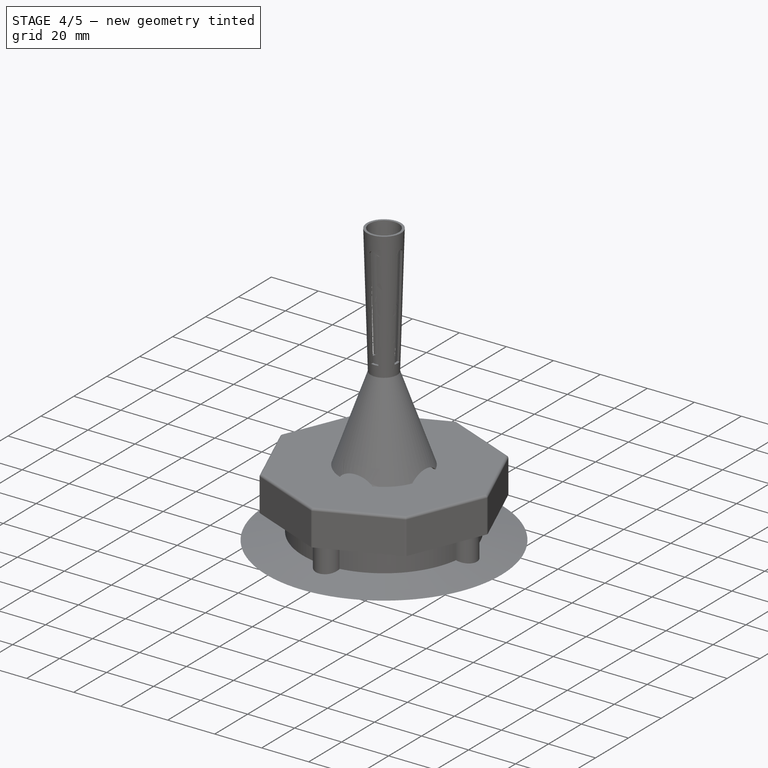
[diagram: stage 4 of 5 — iso view after this stage's code; geometry added in this stage tinted green]
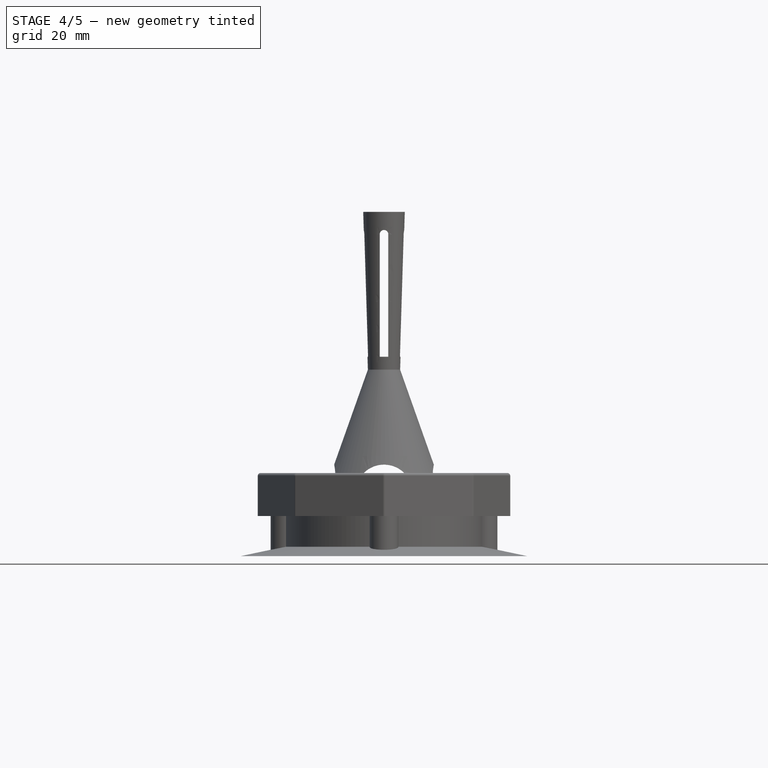
[diagram: stage 4 of 5 — front view after this stage's code; geometry added in this stage tinted green]
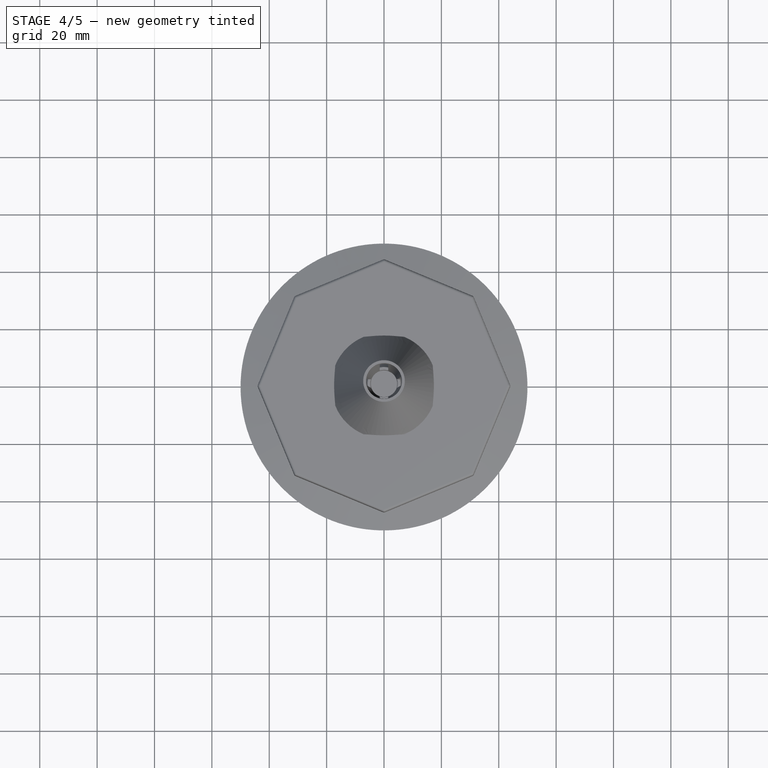
[diagram: stage 4 of 5 — top view after this stage's code; geometry added in this stage tinted green]
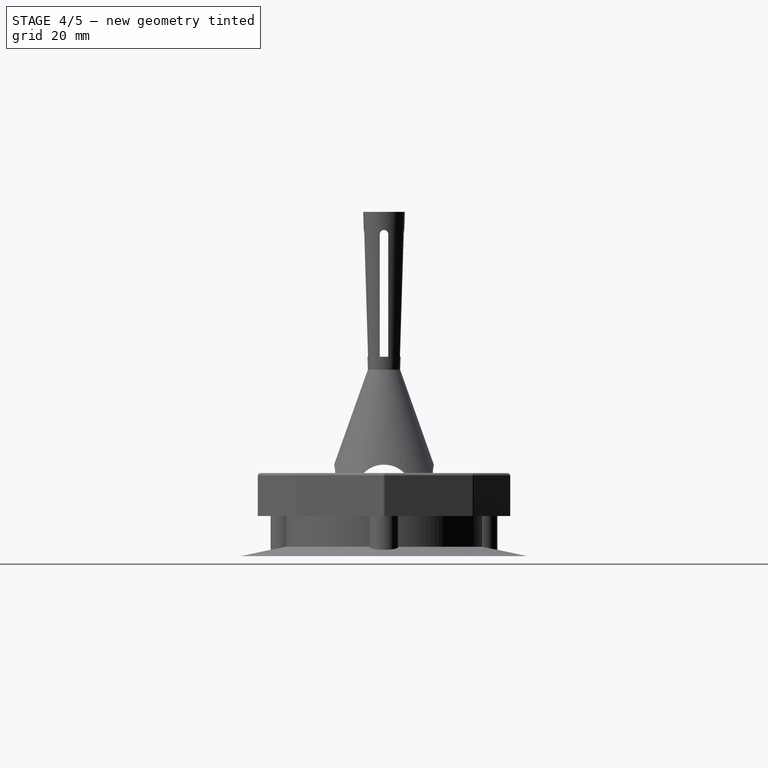
[diagram: stage 4 of 5 — right view after this stage's code; geometry added in this stage tinted green]
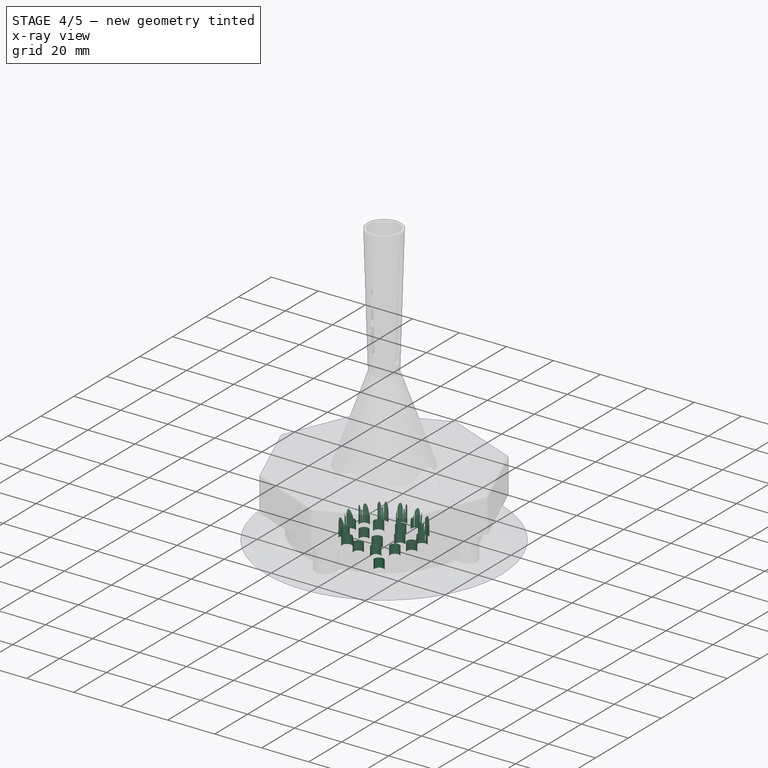
[diagram: stage 4 of 5 — x-ray composite at the iso view; earlier geometry ghosted, this stage's added geometry solid]
FEATURE [PartDesign::PolarPattern] PolarPattern002  label="Middle Ring #3"
  AddSubType = 0
  Angle = 360
  Axis = -> Sketch010 [N_Axis]
  BaseFeature = -> Pad006
  CopyShape = false
  InvalidShape = false
  NewSolid = false
  Occurrences = 17
  OriginalSubs = -> [Pad006]
  Originals = -> [Pad006]
  ParallelTransform = true
  SubTransform = true
  Suppress = false
  TreeRank = 58
  ValidateShape = true
  _Version = 3
  expr: Occurrences = <<Parameters>>.Middle_Ring3_Teeth
FEATURE [Sketcher::SketchObject] Sketch011
  ArcFitTolerance = 1e-06
  AttachmentSupport = -> [PolarPattern002]
  ExternalBSplineMaxDegree = 5
  ExternalBSplineTolerance = 0.0001
  FullyConstrained = true
  InternalTolerance = 1e-06
  InvalidShape = false
  MakeInternals = false
  MapMode = 5
  Placement = pos=(0,0,4) rot=(0,0,1;0rad)
  Support = -> [PolarPattern002]
  TreeRank = 59
  ValidateShape = true
  expr: Constraints[0] = <<Parameters>>.Spice_Hole_Diameter
  expr: Constraints[3] = <<Parameters>>.Middle_Ring1_Hole_Angle
  expr: Constraints[4] = <<Parameters>>.Middle_Ring1_Center / 2 + <<Parameters>>.Spice_Hole_Diameter / 2
  sketch-geometry (2):
    g0: Circle CenterX=1.81173 CenterY=-6.76148 CenterZ=0 NormalX=0 NormalY=0 NormalZ=1 AngleXU=0 Radius=2
    g1: LineSegment [constr] StartX=0 StartY=0 StartZ=0 EndX=1.81173 EndY=-6.76148 EndZ=0
  constraints (5):
    c: Diameter(g0) = 4
    c: Coincident(g1,g-1)
    c: Coincident(g1,g0)
    c: Angle(g-2,g1) = 3.40339
    c: Distance(g1) = 7
FEATURE [PartDesign::Pocket] Pocket002  label="Middle Hole #1"
  AddSubType = 1
  AutoTaperInnerAngle = true
  BaseFeature = -> PolarPattern002
  CheckUpToFaceLimits = true
  ClaimChildren = false
  Fit = 0
  FitJoin = 0
  InnerFit = 0
  InnerFitJoin = 0
  InvalidShape = false
  Length = 5
  Length2 = 100
  Linearize = true
  NewSolid = false
  Profile = -> Sketch011
  Suppress = false
  TaperInnerAngle = 0
  TaperInnerAngleRev = 0
  TreeRank = 60
  Type = 0
  ValidateShape = true
  _ProfileBasedVersion = 1
  _Version = 1
  expr: Length = <<Parameters>>.Wall_Thickness * 2 + 1
FEATURE [PartDesign::PolarPattern] PolarPattern003  label="Middle Holes #1"
  AddSubType = 0
  Angle = 360
  Axis = -> Sketch011 [N_Axis]
  BaseFeature = -> Pocket002
  CopyShape = false
  InvalidShape = false
  NewSolid = false
  Occurrences = 5
  OriginalSubs = -> [Pocket002]
  Originals = -> [Pocket002]
  ParallelTransform = true
  SubTransform = true
  Suppress = false
  TreeRank = 61
  ValidateShape = true
  _Version = 3
  expr: Occurrences = <<Parameters>>.Middle_Ring1_Teeth
FEATURE [Sketcher::SketchObject] Sketch012
  ArcFitTolerance = 1e-06
  AttachmentSupport = -> [PolarPattern003]
  ExternalBSplineMaxDegree = 5
  ExternalBSplineTolerance = 0.0001
  FullyConstrained = true
  InternalTolerance = 1e-06
  InvalidShape = false
  MakeInternals = false
  MapMode = 5
  Placement = pos=(0,0,4) rot=(0,0,1;0rad)
  Support = -> [PolarPattern003]
  TreeRank = 62
  ValidateShape = true
  expr: Constraints[0] = <<Parameters>>.Spice_Hole_Diameter
  expr: Constraints[3] = <<Parameters>>.Middle_Ring2_Hole_Angle
  expr: Constraints[4] = <<Parameters>>.Middle_Ring2_Center / 2 - <<Parameters>>.Spice_Hole_Diameter / 2
  sketch-geometry (2):
    g0: Circle CenterX=5.47024 CenterY=-12.8871 CenterZ=0 NormalX=0 NormalY=0 NormalZ=1 AngleXU=0 Radius=2
    g1: LineSegment [constr] StartX=0 StartY=0 StartZ=0 EndX=5.47024 EndY=-12.8871 EndZ=0
  constraints (5):
    c: Diameter(g0) = 4
    c: Coincident(g1,g-1)
    c: Coincident(g1,g0)
    c: Angle(g-2,g1) = 3.54302
    c: Distance(g1) = 14
FEATURE [PartDesign::Pocket] Pocket003  label="Middle Hole #2"
  AddSubType = 1
  AutoTaperInnerAngle = true
  BaseFeature = -> PolarPattern003
  CheckUpToFaceLimits = true
  ClaimChildren = false
  Fit = 0
  FitJoin = 0
  InnerFit = 0
  InnerFitJoin = 0
  InvalidShape = false
  Length = 5
  Length2 = 100
  Linearize = true
  NewSolid = false
  Profile = -> Sketch012
  Suppress = false
  TaperInnerAngle = 0
  TaperInnerAngleRev = 0
  TreeRank = 63
  Type = 4
  ValidateShape = true
  _ProfileBasedVersion = 1
  _Version = 1
  expr: Length = <<Parameters>>.Wall_Thickness * 2 + 1
FEATURE [PartDesign::PolarPattern] PolarPattern004  label="Middle Holes #2"
  AddSubType = 0
  Angle = 360
  Axis = -> Sketch012 [N_Axis]
  BaseFeature = -> Pocket003
  CopyShape = false
  InvalidShape = false
  NewSolid = false
  Occurrences = 13
  OriginalSubs = -> [Pocket003]
  Originals = -> [Pocket003]
  ParallelTransform = true
  SubTransform = true
  Suppress = false
  TreeRank = 64
  ValidateShape = true
  _Version = 3
  expr: Occurrences = <<Parameters>>.Middle_Ring2_Teeth
FEATURE [Sketcher::SketchObject] Sketch013
  ArcFitTolerance = 1e-06
  AttachmentSupport = -> [PolarPattern004]
  ExternalBSplineMaxDegree = 5
  ExternalBSplineTolerance = 0.0001
  FullyConstrained = true
  InternalTolerance = 1e-06
  InvalidShape = false
  MakeInternals = false
  MapMode = 5
  Placement = pos=(0,0,4) rot=(0,0,1;0rad)
  Support = -> [PolarPattern004]
  TreeRank = 65
  ValidateShape = true
  expr: Constraints[0] = <<Parameters>>.Spice_Hole_Diameter
  expr: Constraints[3] = <<Parameters>>.Middle_Ring3_Hole_Angle
  expr: Constraints[4] = <<Parameters>>.Middle_Ring3_Center / 2 - <<Parameters>>.Spice_Hole_Diameter / 2
  sketch-geometry (2):
    g0: Circle CenterX=12.876 CenterY=-21.4292 CenterZ=0 NormalX=0 NormalY=0 NormalZ=1 AngleXU=0 Radius=2
    g1: LineSegment [constr] StartX=0 StartY=0 StartZ=0 EndX=12.876 EndY=-21.4292 EndZ=0
  constraints (5):
    c: Diameter(g0) = 4
    c: Coincident(g1,g-1)
    c: Coincident(g1,g0)
    c: Angle(g-2,g1) = 3.68264
    c: Distance(g1) = 25
FEATURE [PartDesign::Pocket] Pocket004  label="Middle Hole #3"
  AddSubType = 1
  AutoTaperInnerAngle = true
  BaseFeature = -> PolarPattern004
  CheckUpToFaceLimits = true
  ClaimChildren = false
  Fit = 0
  FitJoin = 0
  InnerFit = 0
  InnerFitJoin = 0
  InvalidShape = false
  Length = 5
  Length2 = 100
  Linearize = true
  NewSolid = false
  Profile = -> Sketch013
  Suppress = false
  TaperInnerAngle = 0
  TaperInnerAngleRev = 0
  TreeRank = 66
  Type = 4
  ValidateShape = true
  _ProfileBasedVersion = 1
  _Version = 1
  expr: Length = <<Parameters>>.Wall_Thickness * 2 + 1
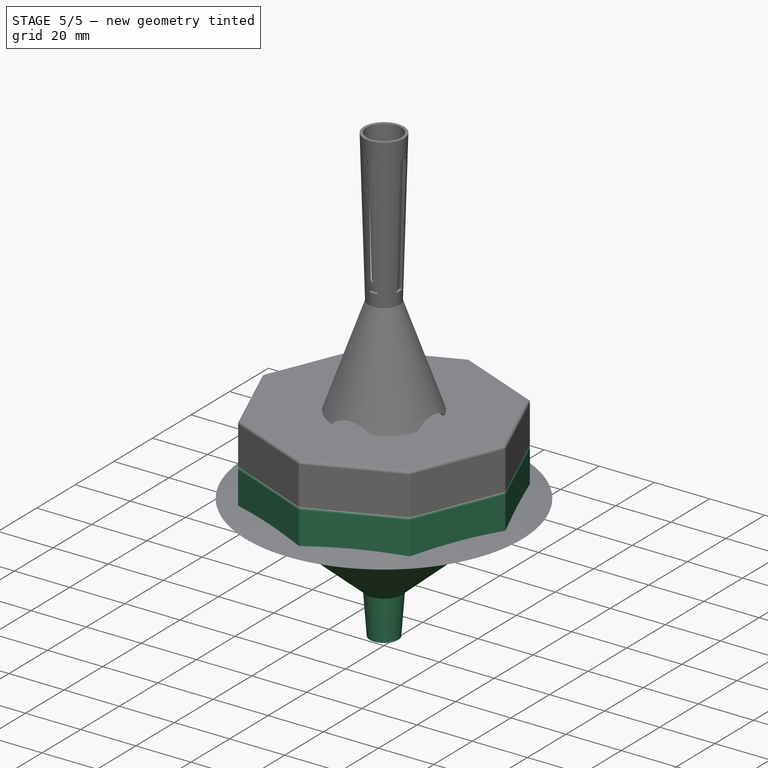
[diagram: stage 5 of 5 — iso view after this stage's code; geometry added in this stage tinted green]
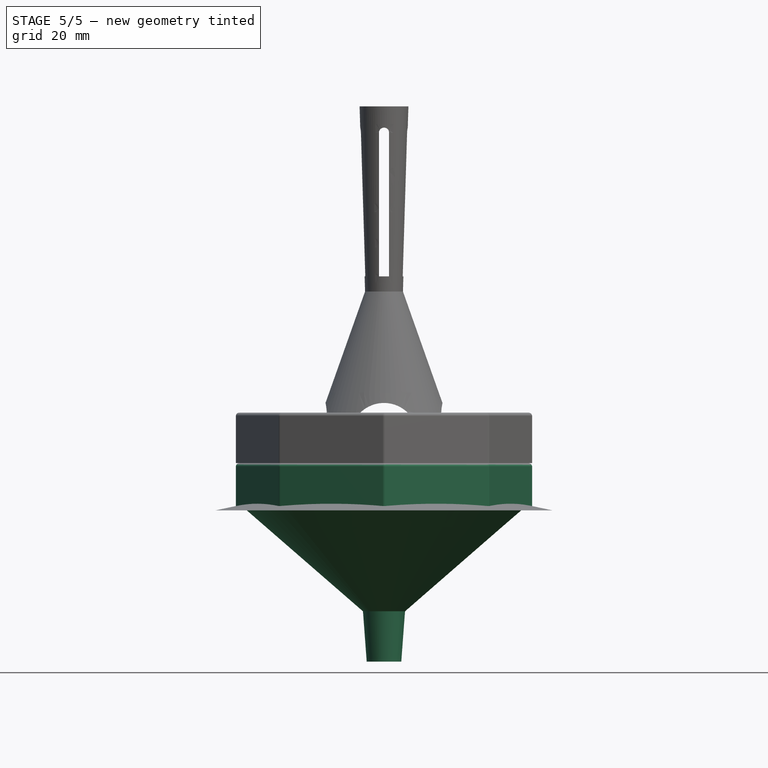
[diagram: stage 5 of 5 — front view after this stage's code; geometry added in this stage tinted green]
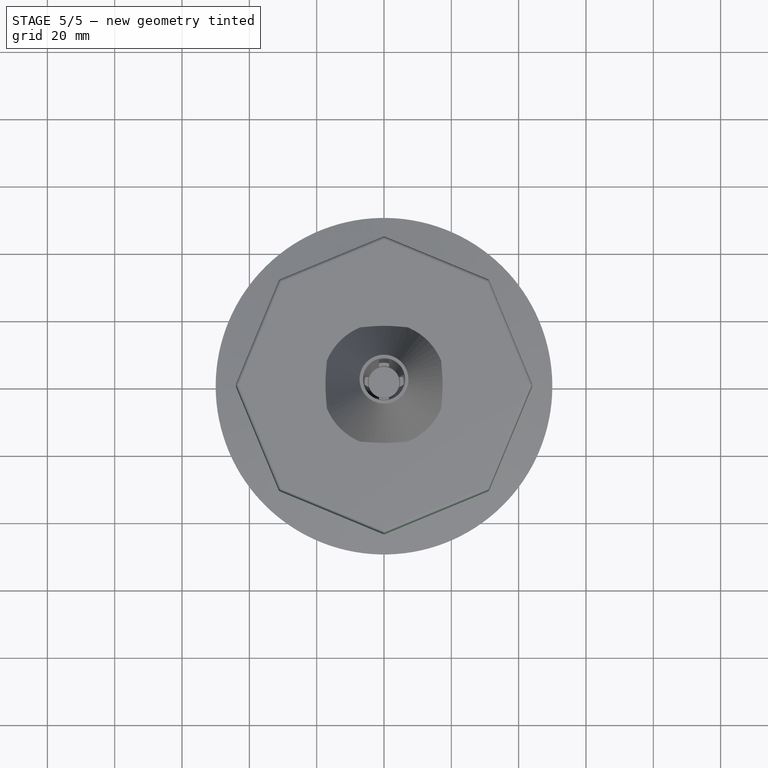
[diagram: stage 5 of 5 — top view after this stage's code; geometry added in this stage tinted green]
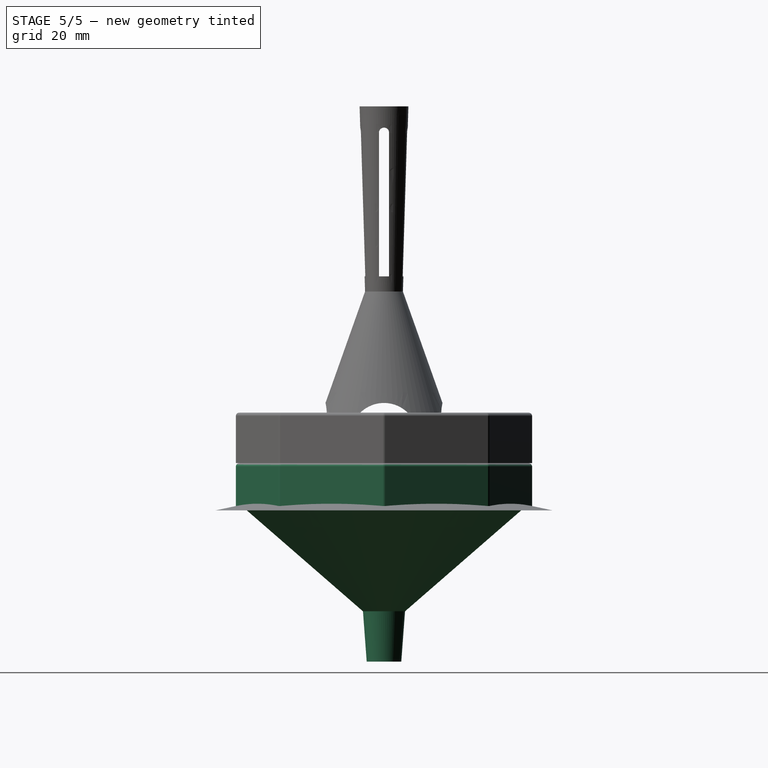
[diagram: stage 5 of 5 — right view after this stage's code; geometry added in this stage tinted green]
FEATURE [Sketcher::SketchObject] Sketch002
  ArcFitTolerance = 1e-06
  ExternalBSplineMaxDegree = 5
  ExternalBSplineTolerance = 0.0001
  FullyConstrained = true
  InternalTolerance = 1e-06
  InvalidShape = false
  MakeInternals = false
  MapMode = 5
  Placement = pos=(0,0,14) rot=(0,0,1;0rad)
  TreeRank = 28
  ValidateShape = true
  expr: Placement.Base.z = 4 + <<Parameters>>.Tooth_Height
  expr: Constraints[23] = <<Parameters>>.Cone_Outer_Diameter
  expr: Constraints[26] = <<Parameters>>.Cone_Inner_Diameter
  sketch-geometry (10):
    g0: LineSegment StartX=-31.1639 StartY=31.1639 StartZ=0 EndX=-44.0725 EndY=-1.64526e-11 EndZ=0
    g1: LineSegment StartX=-44.0725 StartY=-1.6454e-11 StartZ=0 EndX=-31.1639 EndY=-31.1639 EndZ=0
    g2: LineSegment StartX=-31.1639 StartY=-31.1639 StartZ=0 EndX=-3.29301e-11 EndY=-44.0725 EndZ=0
    g3: LineSegment StartX=-3.29313e-11 StartY=-44.0725 StartZ=0 EndX=31.1639 EndY=-31.1639 EndZ=0
    g4: LineSegment StartX=31.1639 StartY=-31.1639 StartZ=0 EndX=44.0725 EndY=-1.64633e-11 EndZ=0
    g5: LineSegment StartX=44.0725 StartY=-1.64635e-11 StartZ=0 EndX=31.1639 EndY=31.1639 EndZ=0
    g6: LineSegment StartX=31.1639 StartY=31.1639 StartZ=0 EndX=0 EndY=44.0725 EndZ=0
    g7: LineSegment StartX=-2e-16 StartY=44.0725 StartZ=0 EndX=-31.1639 EndY=31.1639 EndZ=0
    g8: Circle [constr] CenterX=-1e-16 CenterY=0 CenterZ=0 NormalX=0 NormalY=0 NormalZ=1 AngleXU=0 Radius=44.0725
    g9: Circle CenterX=-1e-16 CenterY=0 CenterZ=0 NormalX=0 NormalY=0 NormalZ=1 AngleXU=0 Radius=35
  constraints (22):
    c: Coincident(g0,g1)
    c: Coincident(g1,g2)
    c: Coincident(g2,g3)
    c: Coincident(g3,g4)
    c: Coincident(g4,g5)
    c: Coincident(g5,g6)
    c: Coincident(g6,g7)
    c: Coincident(g7,g0)
    c: Equal(g0, g1-g7) x7
    c: PointOnObject(g0,g8)
    c: PointOnObject(g1,g8)
    c: PointOnObject(g2,g8)
    c: PointOnObject(g3,g8)
    c: PointOnObject(g4,g8)
    c: PointOnObject(g5,g8)
    c: PointOnObject(g6,g8)
    c: PointOnObject(g7,g8)
    c: Diameter(g8) = 88.1449
    c: PointOnObject(g6,g-2)
    c: Coincident(g9,g8)
    c: Diameter(g9) = 70
    c: Coincident(g9,g-1)
FEATURE [PartDesign::Pad] Pad001  label="Cone Handle"
  AddSubType = 0
  AlongSketchNormal = false
  AutoTaperInnerAngle = true
  CheckUpToFaceLimits = true
  ClaimChildren = false
  Direction = (0,0,1)
  Fit = 0
  FitJoin = 0
  InnerFit = 0
  InnerFitJoin = 0
  InvalidShape = false
  Length = 14
  Length2 = 100
  Linearize = true
  NewSolid = false
  Profile = -> Sketch002
  Reversed = true
  Suppress = false
  TaperInnerAngle = 0
  TaperInnerAngleRev = 0
  TreeRank = 29
  Type = 0
  ValidateShape = true
  _ProfileBasedVersion = 1
  expr: Length = <<Parameters>>.Middle_Height
FEATURE [Sketcher::SketchObject] Sketch005
  ArcFitTolerance = 1e-06
  AttachmentSupport = -> [Pad001]
  ExternalBSplineMaxDegree = 5
  ExternalBSplineTolerance = 0.0001
  FullyConstrained = true
  InternalTolerance = 1e-06
  InvalidShape = false
  MakeInternals = false
  MapMode = 5
  Placement = pos=(0,0,14) rot=(0,0,1;0rad)
  Support = -> [Pad001]
  TreeRank = 34
  ValidateShape = true
  expr: Constraints[0] = <<Parameters>>.Cone_Side_Post_Diameter
  expr: Constraints[10] = <<Parameters>>.Cone_Inner_Diameter / 2
  expr: Constraints[11] = <<Parameters>>.Cone_Inner_Diameter / 2
  expr: Constraints[8] = <<Parameters>>.Cone_Inner_Diameter / 2
  expr: Constraints[9] = <<Parameters>>.Cone_Inner_Diameter / 2
  sketch-geometry (4):
    g0: Circle CenterX=0 CenterY=35 CenterZ=0 NormalX=0 NormalY=0 NormalZ=1 AngleXU=0 Radius=5.07246
    g1: Circle CenterX=35 CenterY=0 CenterZ=0 NormalX=0 NormalY=0 NormalZ=1 AngleXU=0 Radius=5.07246
    g2: Circle CenterX=0 CenterY=-35 CenterZ=0 NormalX=0 NormalY=0 NormalZ=1 AngleXU=0 Radius=5.07246
    g3: Circle CenterX=-35 CenterY=0 CenterZ=0 NormalX=0 NormalY=0 NormalZ=1 AngleXU=0 Radius=5.07246
  constraints (12):
    c: Diameter(g0) = 10.1449
    c: Equal(g0,g1)
    c: Equal(g0,g2)
    c: Equal(g0,g3)
    c: PointOnObject(g0,g-2)
    c: PointOnObject(g1,g-1)
    c: PointOnObject(g2,g-2)
    c: PointOnObject(g3,g-1)
    c: DistanceX(g3,g-1) = 35
    c: DistanceX(g-1,g1) = 35
    c: DistanceY(g-1,g0) = 35
    c: DistanceY(g2,g-1) = 35
FEATURE [PartDesign::Pocket] Pocket001  label="Cone Handle Hollow"
  AddSubType = 1
  AutoTaperInnerAngle = true
  BaseFeature = -> Pad001
  CheckUpToFaceLimits = true
  ClaimChildren = false
  Fit = 0
  FitJoin = 0
  InnerFit = 0
  InnerFitJoin = 0
  InvalidShape = false
  Length = 14
  Length2 = 100
  Linearize = true
  NewSolid = false
  Profile = -> Sketch005
  Suppress = false
  TaperInnerAngle = 0
  TaperInnerAngleRev = 0
  TreeRank = 35
  Type = 0
  ValidateShape = true
  _ProfileBasedVersion = 1
  _Version = 1
  expr: Length = <<Parameters>>.Middle_Side_Post_Height
FEATURE [Sketcher::SketchObject] Sketch006
  ArcFitTolerance = 1e-06
  AttachmentSupport = -> [XZ_Plane001]
  ExternalBSplineMaxDegree = 5
  ExternalBSplineTolerance = 0.0001
  FullyConstrained = true
  InternalTolerance = 1e-06
  InvalidShape = false
  MakeInternals = false
  MapMode = 5
  Placement = pos=(0,0,0) rot=(1,0,0;1.5708rad)
  Support = -> [XZ_Plane001]
  TreeRank = 36
  ValidateShape = true
  expr: Constraints[11] = <<Parameters>>.Cone_Angle / 2
  expr: Constraints[13] = (90 - <<Parameters>>.Cone_Angle / 2) / 2
  expr: Constraints[15] = <<Parameters>>.Cone_Insert_Width / 2
  expr: Constraints[16] = <<Parameters>>.Cone_Insert_Height
  expr: Constraints[18] = <<Parameters>>.Cone_Collection_Diameter / 2
  expr: Constraints[19] = <<Parameters>>.Cone_Collection_Height
  expr: Constraints[21] = <<Parameters>>.Cone_Inner_Diameter / 2
  sketch-geometry (13):
    g0: LineSegment StartX=-40.7763 StartY=0 StartZ=0 EndX=-40.0434 EndY=0.680401 EndZ=0
    g1: GeomPoint [constr] X=-5.28989 Y=-29.4632 Z=0
    g2: GeomPoint [constr] X=-6.25 Y=-30 Z=0
    g3: GeomPoint [constr] X=-4.13837 Y=-44.9588 Z=0
    g4: GeomPoint [constr] X=-5.13837 Y=-44.9588 Z=0
    g5: LineSegment StartX=-40.7763 StartY=0 StartZ=0 EndX=-6.25 EndY=-30 EndZ=0
    g6: LineSegment StartX=-6.25 StartY=-30 StartZ=0 EndX=-5.13837 EndY=-44.9588 EndZ=0
    g7: LineSegment StartX=-5.13837 StartY=-44.9588 StartZ=0 EndX=-4.13837 EndY=-44.9588 EndZ=0
    g8: LineSegment StartX=-4.13837 StartY=-44.9588 StartZ=0 EndX=-5.28989 EndY=-29.4632 EndZ=0
    g9: GeomPoint X=-35 Y=0 Z=0
    g10: LineSegment StartX=-35 StartY=0 StartZ=0 EndX=-39.2604 EndY=0 EndZ=0
    g11: LineSegment StartX=-39.2604 StartY=0 StartZ=0 EndX=-40.0434 EndY=0.680401 EndZ=0
    g12: LineSegment StartX=-35 StartY=0 StartZ=0 EndX=-5.28989 EndY=-29.4632 EndZ=0
  constraints (29):
    c: PointOnObject(g0,g-1)
    c: Coincident(g5,g0)
    c: Coincident(g5,g2)
    c: Coincident(g6,g5)
    c: Coincident(g6,g4)
    c: Coincident(g7,g6)
    c: Coincident(g7,g3)
    c: Horizontal(g7)
    c: Coincident(g8,g7)
    c: Coincident(g8,g1)
    c: Coincident(g11,g0)
    c: Angle(g-2,g8) = 0.0741765
    c: Parallel(g8,g6)
    c: Angle(g-1,g0) = 0.74831
    c: Distance(g0) = 1
    c: DistanceX(g5,g-1) = 6.25
    c: Distance(g6) = 15
    c: Distance(g7) = 1
    c: DistanceX(g0,g-1) = 40.7763
    c: DistanceY(g5,g-1) = 30
    c: PointOnObject(g9,g-1)
    c: DistanceX(g9,g-1) = 35
    c: Coincident(g10,g9)
    c: Horizontal(g10)
    c: Coincident(g11,g10)
    c: Parallel(g5,g11)
    c: Distance(g5,g8) = 1.1
    c: Coincident(g12,g9)
    c: Coincident(g12,g8)
FEATURE [PartDesign::Revolution] Revolution  label="Cone Collector"
  AddSubType = 0
  Angle = 360
  Axis = (0,-2e-16,1)
  Base = (0,0,0)
  BaseFeature = -> Pocket001
  ClaimChildren = false
  Fit = 0
  FitJoin = 0
  InnerFit = 0
  InnerFitJoin = 0
  InvalidShape = false
  Linearize = true
  NewSolid = false
  Profile = -> Sketch006
  ReferenceAxis = -> Sketch006 [V_Axis]
  Suppress = false
  TreeRank = 37
  ValidateShape = true
  _ProfileBasedVersion = 1
FEATURE [PartDesign::Fillet] Fillet  label="Cone Handle Fillet"
  AddSubType = 0
  Base = -> Revolution [Edge40,Edge9,Edge36,Edge7,Edge6,Edge48,Edge11,Edge13,Edge49,Edge12,Edge10,Edge8,Edge1,Edge2,Edge25,Edge41]
  BaseFeature = -> Revolution
  InvalidShape = false
  NewSolid = false
  Radius = 1
  SupportTransform = false
  Suppress = false
  TreeRank = 38
  ValidateShape = true
FEATURE [PartDesign::PolarPattern] PolarPattern005  label="Middle Holes #003"
  AddSubType = 0
  Angle = 360
  Axis = -> Sketch013 [N_Axis]
  BaseFeature = -> Pocket004
  CopyShape = false
  InvalidShape = false
  NewSolid = false
  Occurrences = 17
  OriginalSubs = -> [Pocket004]
  Originals = -> [Pocket004]
  ParallelTransform = true
  SubTransform = true
  Suppress = false
  TreeRank = 67
  ValidateShape = true
  _Version = 3
  expr: Occurrences = <<Parameters>>.Middle_Ring3_Teeth
FEATURE [Sketcher::SketchObject] Sketch014
  ArcFitTolerance = 1e-06
  AttachmentSupport = -> [PolarPattern005]
  ExternalBSplineMaxDegree = 5
  ExternalBSplineTolerance = 0.0001
  FullyConstrained = true
  InternalTolerance = 1e-06
  InvalidShape = false
  MakeInternals = false
  MapMode = 5
  Placement = pos=(0,0,14) rot=(0,0,1;0rad)
  Support = -> [PolarPattern005]
  TreeRank = 68
  ValidateShape = true
  expr: Constraints[1] = <<Parameters>>.Center_Post_Diameter - 2 * <<Parameters>>.Wall_Thickness
  sketch-geometry (1):
    g0: Circle CenterX=0 CenterY=0 CenterZ=0 NormalX=0 NormalY=0 NormalZ=1 AngleXU=0 Radius=3
  constraints (2):
    c: Coincident(g0,g-1)
    c: Diameter(g0) = 6
FEATURE [PartDesign::Pocket] Pocket005  label="Center Hole"
  AddSubType = 1
  AutoTaperInnerAngle = true
  BaseFeature = -> PolarPattern005
  CheckUpToFaceLimits = true
  ClaimChildren = false
  Fit = 0
  FitJoin = 0
  InnerFit = 0
  InnerFitJoin = 0
  InvalidShape = false
  Length = 14
  Length2 = 100
  Linearize = true
  NewSolid = false
  Profile = -> Sketch014
  Suppress = false
  TaperInnerAngle = 0
  TaperInnerAngleRev = 0
  TreeRank = 69
  Type = 0
  ValidateShape = true
  _ProfileBasedVersion = 1
  _Version = 1
  expr: Length = <<Parameters>>.Middle_Height
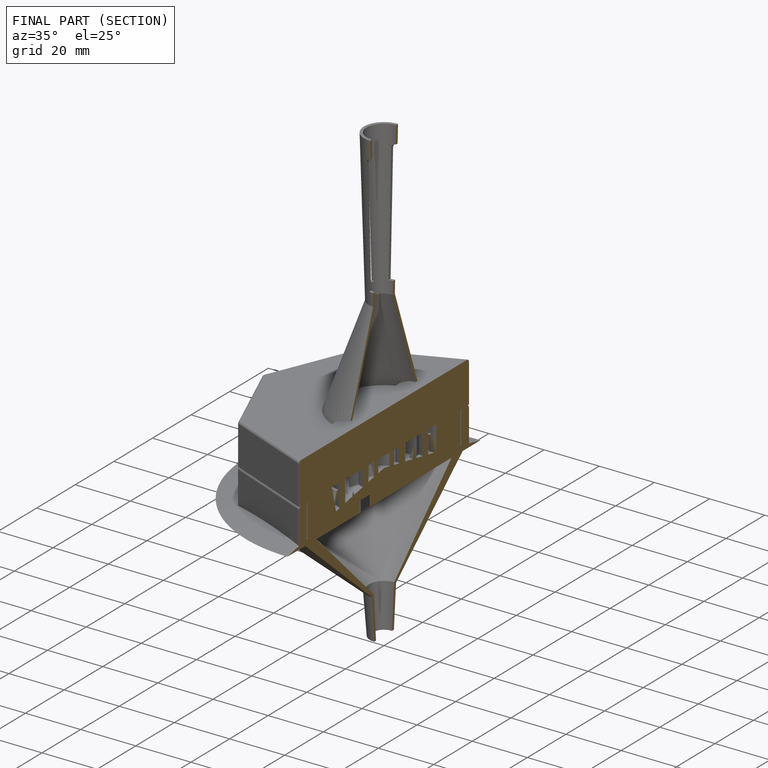
[diagram: finished part — half-section view (interior)]
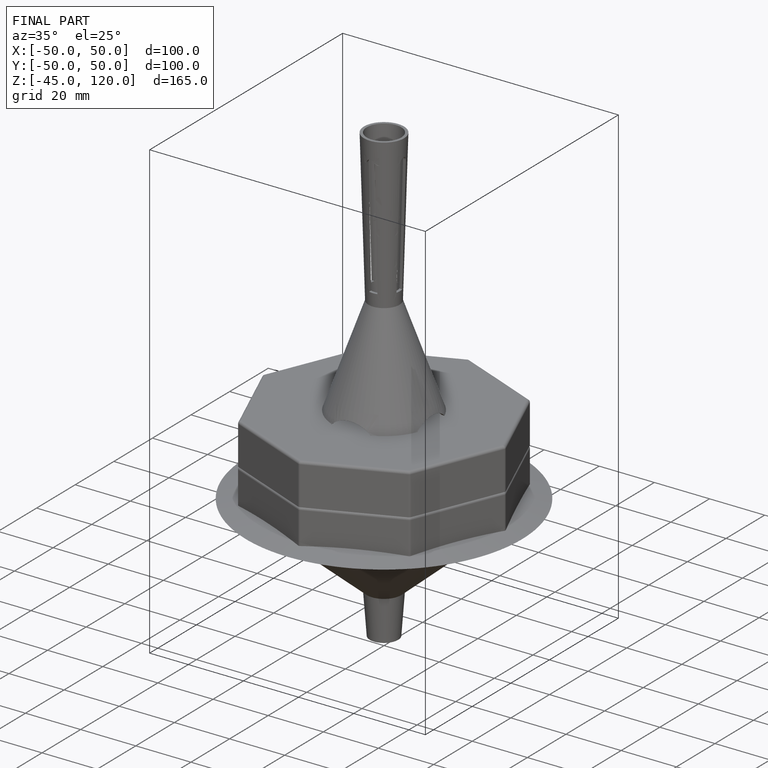
[diagram: finished part — iso view with bounding-box wireframe]
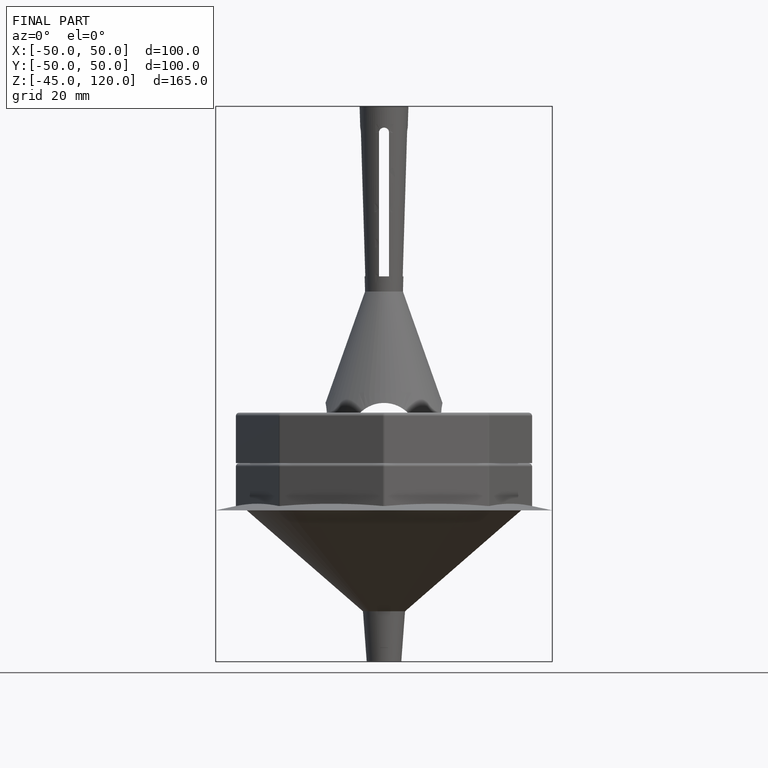
[diagram: finished part — front view with bounding-box wireframe]
